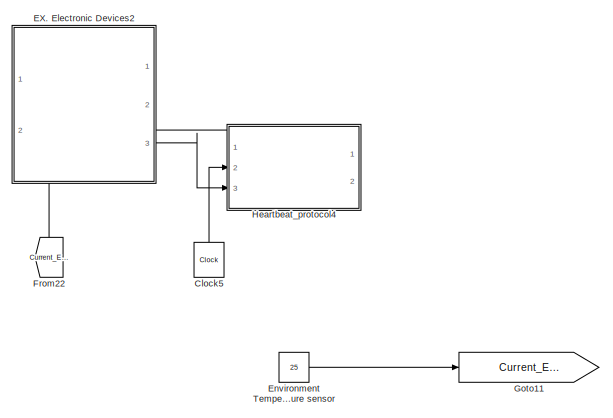
[diagram: root canvas - part 1/5, top left region]
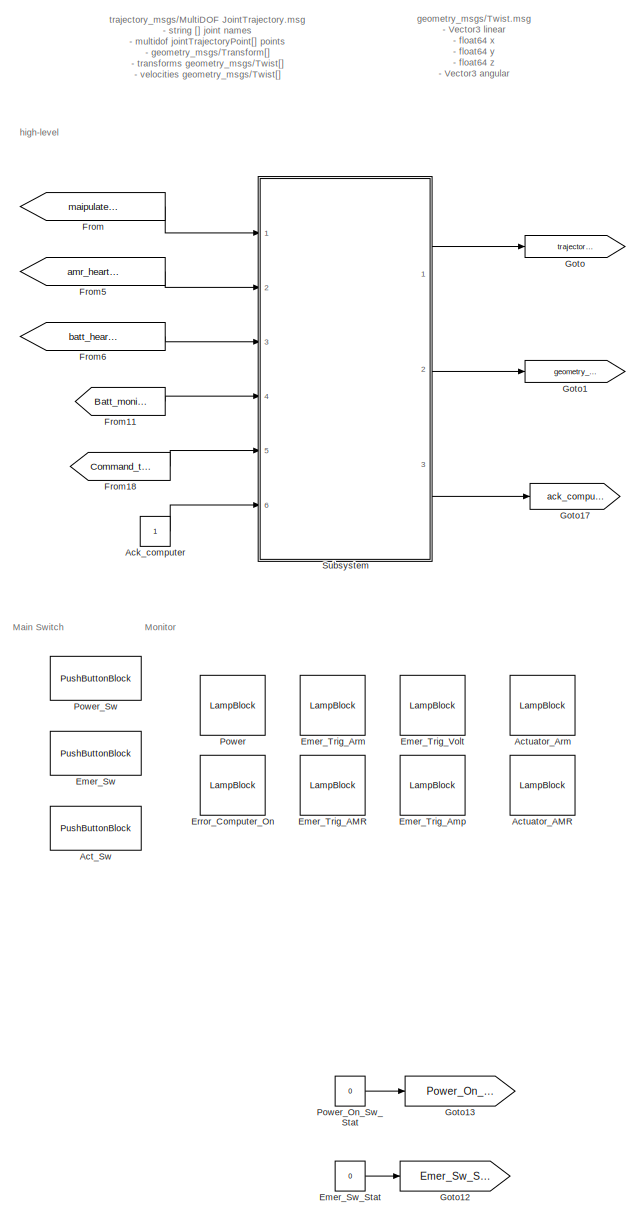
[diagram: root canvas - part 2/5, middle left region]
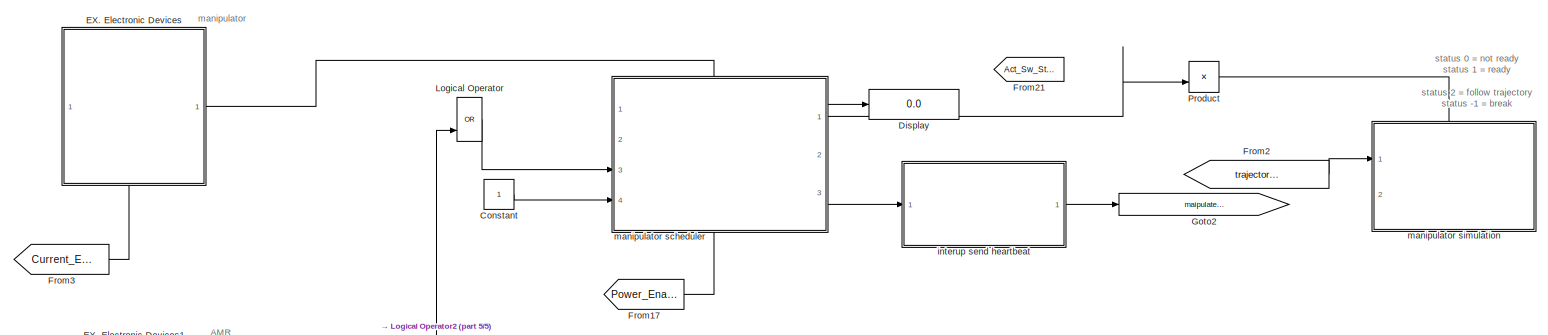
[diagram: root canvas - part 3/5, central region]
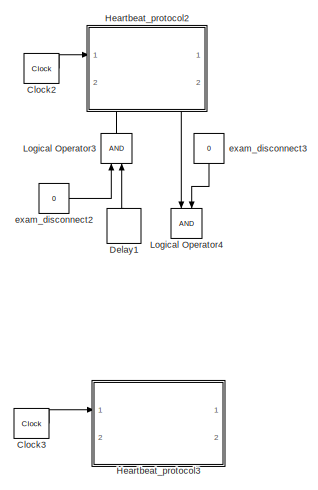
[diagram: root canvas - part 4/5, middle right region]
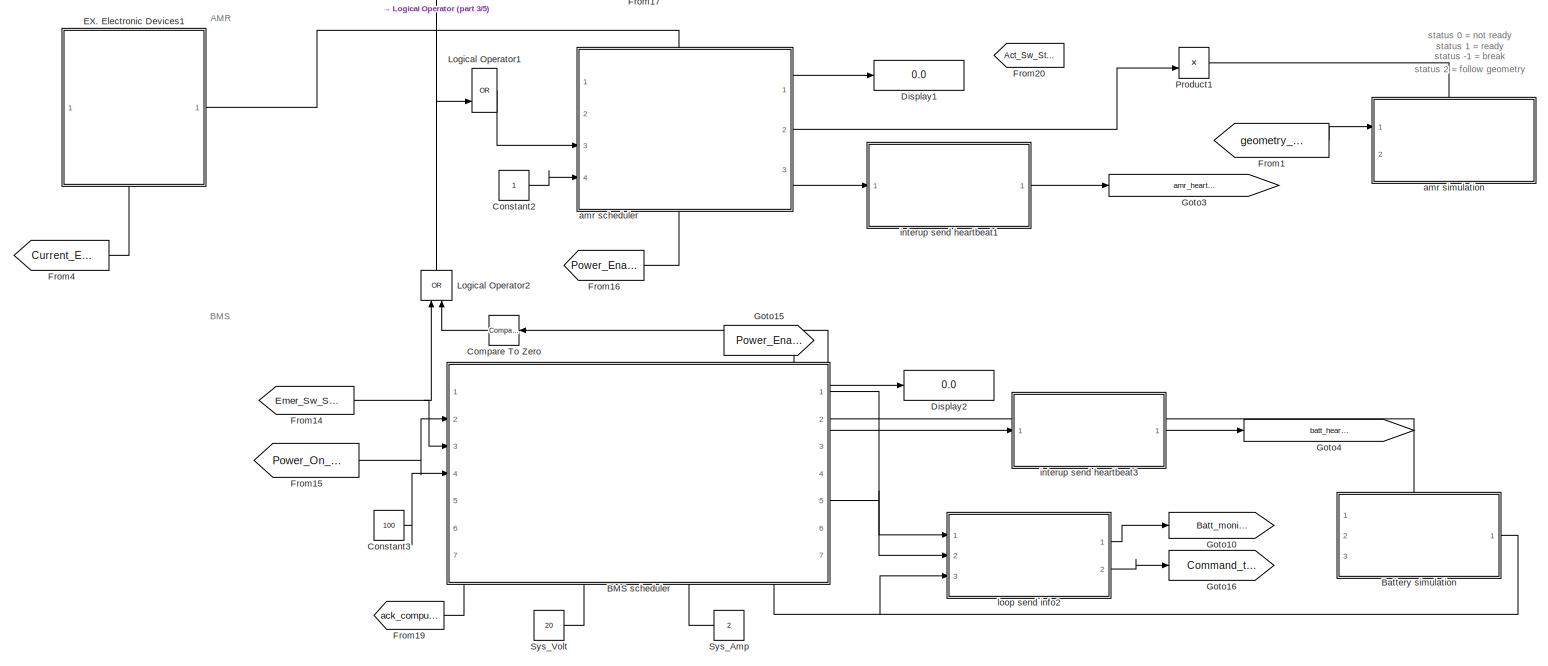
[diagram: root canvas - part 5/5, bottom center region]
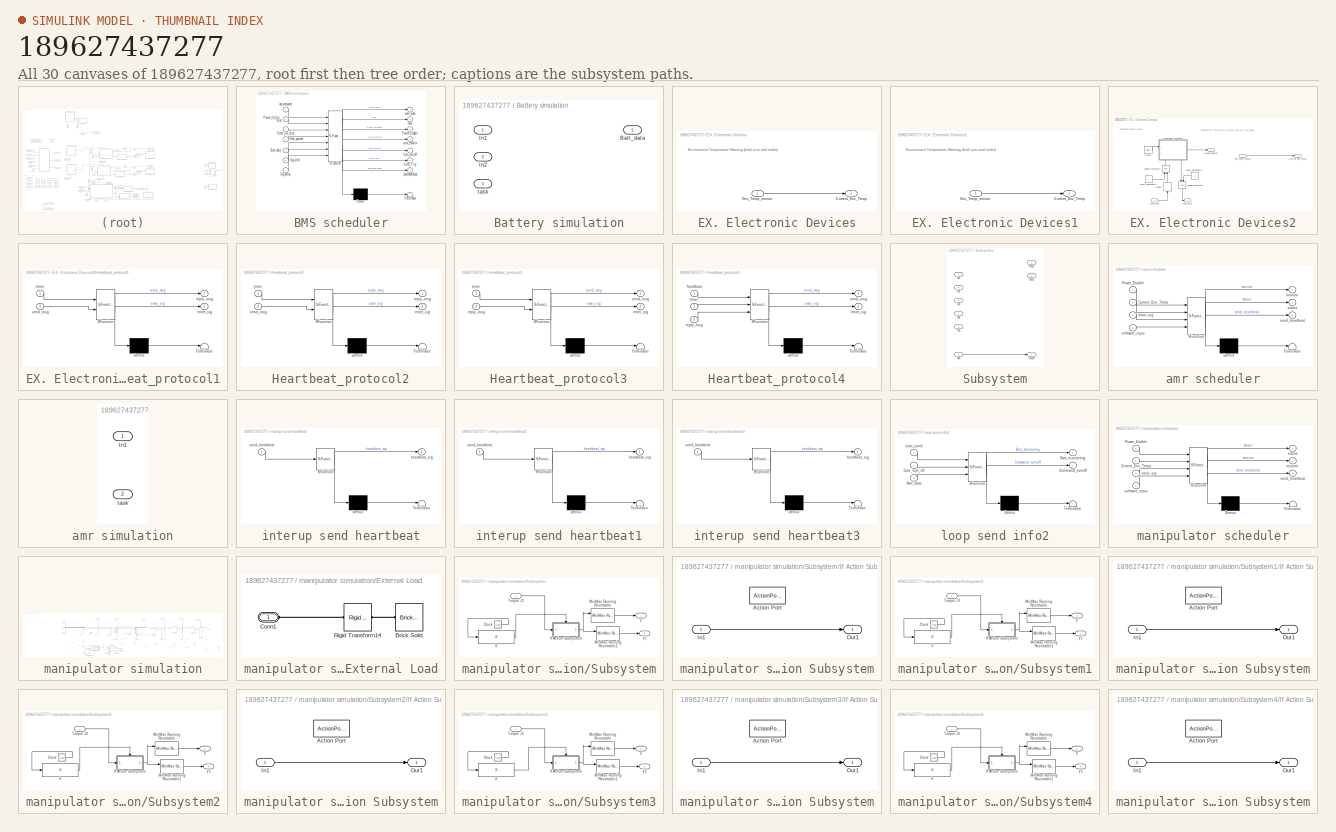
[diagram: thumbnail index - all 30 canvases of the model, root first then tree order]
MODEL slx_189627437277
KIND model
CONFIG AbsTol = auto
CONFIG EnableMultiTasking = off
CONFIG FixedStep = auto
CONFIG MaxStep = auto
CONFIG MinStep = auto
CONFIG RelTol = 1e-3
CONFIG SampleTimeConstraint = Unconstrained
CONFIG SolverName = VariableStepAuto
CONFIG StartTime = 0.0
CONFIG StopTime = inf
BLOCK [Constant] Ack_computer
BLOCK [PushButtonBlock] Act_Sw
  ButtonType = Latch
  OffValue = 0.000000
BLOCK [LampBlock] Actuator_AMR
  Icon = Engine
  LabelPosition = Hide
BLOCK [LampBlock] Actuator_Arm
  Icon = Engine
  LabelPosition = Hide
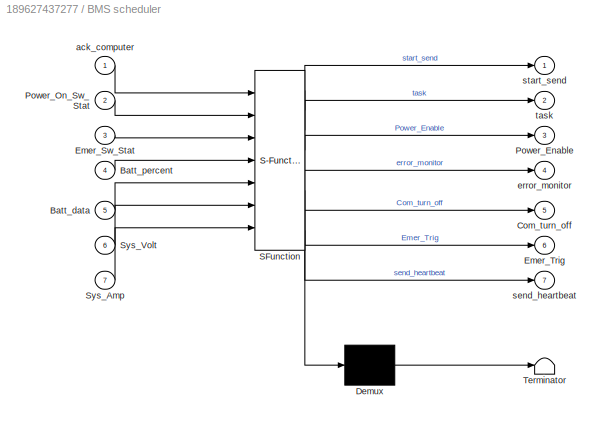
BLOCK [SubSystem] BMS scheduler
  ErrorFcn = Stateflow.Translate.translate
  PermitHierarchicalResolution = ExplicitOnly
  PortSchema = {"entries":[{"content":{"sides":[{"content":{"connectorIds":["In3","In2","In4"]},"type":"ConnectorPlacement.EquallySpacedRectSide","uuid":"e14584fa-6c70-433d-b2da-38d1197773c6"},{"content":{"connectorIds":["Out4","Out7","Out2","Out1","Out5"],"side":"RIGHT"},"type":"ConnectorPlacement.EquallySpacedRectSide","uuid":"c0129660-3601-4a2d-a8be-6a057e5db4e4"},{"content":{"connectorIds":["Out6","Out3"],"s...<+460ch>
  Ports = [7, 7]
  RequestExecContextInheritance = off
  SFBlockType = Chart
  TreatAsAtomicUnit = on
BLOCK [Demux] BMS scheduler/ Demux 
  Outputs = 1
  Ports = [1, 1]
BLOCK [S-Function] BMS scheduler/ SFunction 
  EnableBusSupport = on
  FunctionName = sf_sfun
  PortCounts = [7 8]
  Ports = [7, 8]
  SFcnIsStateOwnerBlock = off
  SFunctionDeploymentMode = off
  Tag = Stateflow S-Function 4
BLOCK [Terminator] BMS scheduler/ Terminator 
BLOCK [Inport] BMS scheduler/Batt_data
  Port = 5
BLOCK [Inport] BMS scheduler/Batt_percent
  Port = 4
BLOCK [Outport] BMS scheduler/Com_turn_off
  Port = 5
BLOCK [Inport] BMS scheduler/Emer_Sw_Stat
  Port = 3
BLOCK [Outport] BMS scheduler/Emer_Trig
  Port = 6
BLOCK [Outport] BMS scheduler/Power_Enable
  Port = 3
BLOCK [Inport] BMS scheduler/Power_On_Sw_Stat
  Port = 2
BLOCK [Inport] BMS scheduler/Sys_Amp
  Port = 7
BLOCK [Inport] BMS scheduler/Sys_Volt
  Port = 6
BLOCK [Inport] BMS scheduler/ack_computer
BLOCK [Outport] BMS scheduler/error_monitor
  Port = 4
BLOCK [Outport] BMS scheduler/send_heartbeat
  Port = 7
BLOCK [Outport] BMS scheduler/start_send
BLOCK [Outport] BMS scheduler/task
  Port = 2
BLOCK [SubSystem] Battery simulation
  PortSchema = {"entries":[{"content":{"sides":[{"content":{"connectorIds":["In1","In2"]},"type":"ConnectorPlacement.EquallySpacedRectSide","uuid":"e14584fa-6c70-433d-b2da-38d1197773c6"},{"content":{"connectorIds":["Out1"],"side":"RIGHT"},"type":"ConnectorPlacement.EquallySpacedRectSide","uuid":"c0129660-3601-4a2d-a8be-6a057e5db4e4"},{"content":{"connectorIds":["In3"],"side":"TOP"},"type":"ConnectorPlacement.Equ...<+251ch>
  Ports = [3, 1]
  RequestExecContextInheritance = off
BLOCK [Outport] Battery simulation/Batt_data
BLOCK [Inport] Battery simulation/In1
BLOCK [Inport] Battery simulation/In2
  Port = 2
BLOCK [Inport] Battery simulation/task
  Port = 3
BLOCK [Clock] Clock2
  Commented = on
  Decimation = 1
  DisplayTime = on
BLOCK [Clock] Clock3
  Commented = on
  Decimation = 1
  DisplayTime = on
BLOCK [Clock] Clock5
  Commented = on
  Decimation = 1
  DisplayTime = on
  NameLocation = right
BLOCK [Reference] Compare To Zero  REF=simulink/Logic and Bit
Operations/Compare
To Zero
  NameLocation = top
  Ports = [1, 1]
  SourceBlock = simulink/Logic and Bit\nOperations/Compare\nTo Zero
  SourceProductBaseCode = SL
  SourceType = Compare To Zero
BLOCK [Constant] Constant
BLOCK [Constant] Constant2
BLOCK [Constant] Constant3
  Value = 100
BLOCK [Delay] Delay1
  Commented = on
  DelayLength = 1
  InputPortMap = u0
  NameLocation = right
  Ports = [1, 1]
BLOCK [Display] Display
  Decimation = 1
  Ports = [1]
BLOCK [Display] Display1
  Decimation = 1
  Ports = [1]
BLOCK [Display] Display2
  Decimation = 1
  Ports = [1]
BLOCK [SubSystem] EX. Electronic Devices
  NameLocation = top
  PortSchema = {"entries":[{"content":{"sides":[{"content":{"connectorIds":[]},"type":"ConnectorPlacement.EquallySpacedRectSide","uuid":"2093f37f-91bf-4439-a287-00f2f1b8dec3"},{"content":{"connectorIds":["Out1"],"side":"RIGHT"},"type":"ConnectorPlacement.EquallySpacedRectSide","uuid":"bc710c56-ac77-428e-a7cb-e88f032cce03"},{"content":{"connectorIds":[],"side":"TOP"},"type":"ConnectorPlacement.EquallySpacedRectSi...<+384ch>
  Ports = [1, 1]
  RequestExecContextInheritance = off
BLOCK [Outport] EX. Electronic Devices/Current_Env_Temp
BLOCK [Inport] EX. Electronic Devices/Env_Temp_sensor
BLOCK [SubSystem] EX. Electronic Devices1
  NameLocation = top
  PortSchema = {"entries":[{"content":{"sides":[{"content":{"connectorIds":[]},"type":"ConnectorPlacement.EquallySpacedRectSide","uuid":"2093f37f-91bf-4439-a287-00f2f1b8dec3"},{"content":{"connectorIds":["Out1"],"side":"RIGHT"},"type":"ConnectorPlacement.EquallySpacedRectSide","uuid":"bc710c56-ac77-428e-a7cb-e88f032cce03"},{"content":{"connectorIds":[],"side":"TOP"},"type":"ConnectorPlacement.EquallySpacedRectSi...<+384ch>
  Ports = [1, 1]
  RequestExecContextInheritance = off
BLOCK [Outport] EX. Electronic Devices1/Current_Env_Temp
BLOCK [Inport] EX. Electronic Devices1/Env_Temp_sensor
BLOCK [SubSystem] EX. Electronic Devices2
  Commented = on
  NameLocation = top
  PortSchema = {"entries":[{"content":{"sides":[{"content":{"connectorIds":[]},"type":"ConnectorPlacement.EquallySpacedRectSide","uuid":"2093f37f-91bf-4439-a287-00f2f1b8dec3"},{"content":{"connectorIds":["Out1","Out2","Out3"],"side":"RIGHT"},"type":"ConnectorPlacement.EquallySpacedRectSide","uuid":"bc710c56-ac77-428e-a7cb-e88f032cce03"},{"content":{"connectorIds":[],"side":"TOP"},"type":"ConnectorPlacement.Equal...<+404ch>
  Ports = [2, 3]
  RequestExecContextInheritance = off
BLOCK [Clock] EX. Electronic Devices2/Clock4
  Decimation = 1
  DisplayTime = on
BLOCK [Outport] EX. Electronic Devices2/Current_Env_Temp
BLOCK [Delay] EX. Electronic Devices2/Delay2
  DelayLength = 1
  InputPortMap = u0
  NameLocation = right
  Ports = [1, 1]
BLOCK [Outport] EX. Electronic Devices2/Device_Fail_Stat
  Port = 2
BLOCK [Inport] EX. Electronic Devices2/Env_Temp_sensor
BLOCK [SubSystem] EX. Electronic Devices2/Heartbeat_protocol1
  ErrorFcn = Stateflow.Translate.translate
  NameLocation = top
  PermitHierarchicalResolution = ExplicitOnly
  PortSchema = {"entries":[{"content":{"sides":[{"content":{"connectorIds":["In1"]},"type":"ConnectorPlacement.EquallySpacedRectSide","uuid":"669ad136-449b-4cce-8c88-f277646368db"},{"content":{"connectorIds":["Out2"],"side":"RIGHT"},"type":"ConnectorPlacement.EquallySpacedRectSide","uuid":"85d872e5-bd76-461e-b542-94d453191651"},{"content":{"connectorIds":[],"side":"TOP"},"type":"ConnectorPlacement.EquallySpacedR...<+396ch>
  Ports = [2, 2]
  RequestExecContextInheritance = off
  SFBlockType = Chart
  TreatAsAtomicUnit = on
BLOCK [Demux] EX. Electronic Devices2/Heartbeat_protocol1/ Demux 
  Outputs = 1
  Ports = [1, 1]
BLOCK [S-Function] EX. Electronic Devices2/Heartbeat_protocol1/ SFunction 
  EnableBusSupport = on
  FunctionName = sf_sfun
  PortCounts = [2 3]
  Ports = [2, 3]
  SFcnIsStateOwnerBlock = off
  SFunctionDeploymentMode = off
  Tag = Stateflow S-Function 13
BLOCK [Terminator] EX. Electronic Devices2/Heartbeat_protocol1/ Terminator 
BLOCK [Outport] EX. Electronic Devices2/Heartbeat_protocol1/emer_sig
  Port = 2
BLOCK [Outport] EX. Electronic Devices2/Heartbeat_protocol1/reply_msg
BLOCK [Inport] EX. Electronic Devices2/Heartbeat_protocol1/send_msg
  Port = 2
BLOCK [Inport] EX. Electronic Devices2/Heartbeat_protocol1/timer
BLOCK [Logic] EX. Electronic Devices2/Logical Operator1
  AllPortsSameDT = off
  NameLocation = right
  OutDataTypeStr = boolean
  Ports = [2, 1]
BLOCK [Logic] EX. Electronic Devices2/Logical Operator2
  AllPortsSameDT = off
  NameLocation = left
  OutDataTypeStr = boolean
  Ports = [2, 1]
BLOCK [Constant] EX. Electronic Devices2/exam_disconnect1
BLOCK [Constant] EX. Electronic Devices2/exam_disconnect4
  NameLocation = right
BLOCK [Outport] EX. Electronic Devices2/reply_msg
  Port = 3
BLOCK [Inport] EX. Electronic Devices2/send_msg
  Port = 2
BLOCK [PushButtonBlock] Emer_Sw
  ButtonType = Latch
  OffValue = 0.000000
BLOCK [Constant] Emer_Sw_Stat
  Value = 0
BLOCK [LampBlock] Emer_Trig_AMR
  LabelPosition = Hide
BLOCK [LampBlock] Emer_Trig_Amp
  LabelPosition = Hide
BLOCK [LampBlock] Emer_Trig_Arm
  LabelPosition = Hide
BLOCK [LampBlock] Emer_Trig_Volt
  LabelPosition = Hide
BLOCK [Constant] Environment Temperature sensor
  Value = 25
BLOCK [LampBlock] Error_Computer_On
  LabelPosition = Hide
BLOCK [From] From
  GotoTag = maipulater_heartbeat_signal
BLOCK [From] From1
  GotoTag = geometry_msgs
BLOCK [From] From11
  GotoTag = Batt_monitoring
BLOCK [From] From14
  GotoTag = Emer_Sw_Stat
BLOCK [From] From15
  GotoTag = Power_On_Sw_Stat
BLOCK [From] From16
  GotoTag = Power_Enable
BLOCK [From] From17
  GotoTag = Power_Enable
BLOCK [From] From18
  GotoTag = Command_turnoff
BLOCK [From] From19
  GotoTag = ack_computer
BLOCK [From] From2
  GotoTag = trajectory_msgs
BLOCK [From] From20
  GotoTag = Act_Sw_Stat
BLOCK [From] From21
  GotoTag = Act_Sw_Stat
BLOCK [From] From22
  Commented = on
  GotoTag = Current_Env_Temp
  NameLocation = right
BLOCK [From] From3
  GotoTag = Current_Env_Temp
BLOCK [From] From4
  GotoTag = Current_Env_Temp
BLOCK [From] From5
  GotoTag = amr_heartbeat_signal
BLOCK [From] From6
  GotoTag = batt_heartbeat_signal
BLOCK [Goto] Goto
  GotoTag = trajectory_msgs
BLOCK [Goto] Goto1
  GotoTag = geometry_msgs
BLOCK [Goto] Goto10
  GotoTag = Batt_monitoring
BLOCK [Goto] Goto11
  GotoTag = Current_Env_Temp
BLOCK [Goto] Goto12
  GotoTag = Emer_Sw_Stat
BLOCK [Goto] Goto13
  GotoTag = Power_On_Sw_Stat
BLOCK [Goto] Goto15
  GotoTag = Power_Enable
BLOCK [Goto] Goto16
  GotoTag = Command_turnoff
BLOCK [Goto] Goto17
  GotoTag = ack_computer
BLOCK [Goto] Goto2
  GotoTag = maipulater_heartbeat_signal
BLOCK [Goto] Goto3
  GotoTag = amr_heartbeat_signal
BLOCK [Goto] Goto4
  GotoTag = batt_heartbeat_signal
BLOCK [SubSystem] Heartbeat_protocol2
  Commented = on
  ErrorFcn = Stateflow.Translate.translate
  NameLocation = top
  PermitHierarchicalResolution = ExplicitOnly
  PortSchema = {"entries":[{"content":{"sides":[{"content":{"connectorIds":["In1"]},"type":"ConnectorPlacement.EquallySpacedRectSide","uuid":"669ad136-449b-4cce-8c88-f277646368db"},{"content":{"connectorIds":["Out2"],"side":"RIGHT"},"type":"ConnectorPlacement.EquallySpacedRectSide","uuid":"85d872e5-bd76-461e-b542-94d453191651"},{"content":{"connectorIds":[],"side":"TOP"},"type":"ConnectorPlacement.EquallySpacedR...<+396ch>
  Ports = [2, 2]
  RequestExecContextInheritance = off
  SFBlockType = Chart
  TreatAsAtomicUnit = on
BLOCK [Demux] Heartbeat_protocol2/ Demux 
  Outputs = 1
  Ports = [1, 1]
BLOCK [S-Function] Heartbeat_protocol2/ SFunction 
  EnableBusSupport = on
  FunctionName = sf_sfun
  PortCounts = [2 3]
  Ports = [2, 3]
  SFcnIsStateOwnerBlock = off
  SFunctionDeploymentMode = off
  Tag = Stateflow S-Function 9
BLOCK [Terminator] Heartbeat_protocol2/ Terminator 
BLOCK [Outport] Heartbeat_protocol2/emer_sig
  Port = 2
BLOCK [Outport] Heartbeat_protocol2/reply_msg
BLOCK [Inport] Heartbeat_protocol2/send_msg
  Port = 2
BLOCK [Inport] Heartbeat_protocol2/timer
BLOCK [SubSystem] Heartbeat_protocol3
  Commented = on
  ErrorFcn = Stateflow.Translate.translate
  PermitHierarchicalResolution = ExplicitOnly
  PortSchema = {"entries":[{"content":{"sides":[{"content":{"connectorIds":["In1"]},"type":"ConnectorPlacement.EquallySpacedRectSide","uuid":"55ab65ce-874e-4ed3-8904-faffec9acc87"},{"content":{"connectorIds":["Out2"],"side":"RIGHT"},"type":"ConnectorPlacement.EquallySpacedRectSide","uuid":"0d2cd230-18ea-4b79-8380-304b366a5a71"},{"content":{"connectorIds":["Out1","In2"],"side":"TOP"},"type":"ConnectorPlacement.Eq...<+252ch>
  Ports = [2, 2]
  RequestExecContextInheritance = off
  SFBlockType = Chart
  TreatAsAtomicUnit = on
BLOCK [Demux] Heartbeat_protocol3/ Demux 
  Outputs = 1
  Ports = [1, 1]
BLOCK [S-Function] Heartbeat_protocol3/ SFunction 
  EnableBusSupport = on
  FunctionName = sf_sfun
  PortCounts = [2 3]
  Ports = [2, 3]
  SFcnIsStateOwnerBlock = off
  SFunctionDeploymentMode = off
  Tag = Stateflow S-Function 10
BLOCK [Terminator] Heartbeat_protocol3/ Terminator 
BLOCK [Outport] Heartbeat_protocol3/emer_sig
  Port = 2
BLOCK [Inport] Heartbeat_protocol3/reply_msg
  Port = 2
BLOCK [Outport] Heartbeat_protocol3/send_msg
BLOCK [Inport] Heartbeat_protocol3/timer
BLOCK [SubSystem] Heartbeat_protocol4
  Commented = on
  ErrorFcn = Stateflow.Translate.translate
  PermitHierarchicalResolution = ExplicitOnly
  PortSchema = {"entries":[{"content":{"sides":[{"content":{"connectorIds":["In3","Out1","In2"]},"type":"ConnectorPlacement.EquallySpacedRectSide","uuid":"55ab65ce-874e-4ed3-8904-faffec9acc87"},{"content":{"connectorIds":["Out2"],"side":"RIGHT"},"type":"ConnectorPlacement.EquallySpacedRectSide","uuid":"0d2cd230-18ea-4b79-8380-304b366a5a71"},{"content":{"connectorIds":[],"side":"TOP"},"type":"ConnectorPlacement.E...<+402ch>
  Ports = [3, 2]
  RequestExecContextInheritance = off
  SFBlockType = Chart
  TreatAsAtomicUnit = on
BLOCK [Demux] Heartbeat_protocol4/ Demux 
  Outputs = 1
  Ports = [1, 1]
BLOCK [S-Function] Heartbeat_protocol4/ SFunction 
  EnableBusSupport = on
  FunctionName = sf_sfun
  PortCounts = [3 3]
  Ports = [3, 3]
  SFcnIsStateOwnerBlock = off
  SFunctionDeploymentMode = off
  Tag = Stateflow S-Function 14
BLOCK [Terminator] Heartbeat_protocol4/ Terminator 
BLOCK [Outport] Heartbeat_protocol4/emer_sig
  Port = 2
BLOCK [Inport] Heartbeat_protocol4/heartbeat
BLOCK [Inport] Heartbeat_protocol4/reply_msg
  Port = 3
BLOCK [Outport] Heartbeat_protocol4/send_msg
BLOCK [Inport] Heartbeat_protocol4/timer
  Port = 2
BLOCK [Logic] Logical Operator
  AllPortsSameDT = off
  IconShape = distinctive
  Inputs = 3
  Operator = OR
  OutDataTypeStr = boolean
  Ports = [3, 1]
BLOCK [Logic] Logical Operator1
  AllPortsSameDT = off
  IconShape = distinctive
  Inputs = 3
  Operator = OR
  OutDataTypeStr = boolean
  Ports = [3, 1]
BLOCK [Logic] Logical Operator2
  AllPortsSameDT = off
  NameLocation = right
  Operator = OR
  OutDataTypeStr = boolean
  Ports = [2, 1]
BLOCK [Logic] Logical Operator3
  AllPortsSameDT = off
  Commented = on
  NameLocation = right
  OutDataTypeStr = boolean
  Ports = [2, 1]
BLOCK [Logic] Logical Operator4
  AllPortsSameDT = off
  Commented = on
  NameLocation = left
  OutDataTypeStr = boolean
  Ports = [2, 1]
BLOCK [LampBlock] Power
  LabelPosition = Hide
BLOCK [Constant] Power_On_Sw_Stat
  Value = 0
BLOCK [PushButtonBlock] Power_Sw
  OffValue = 0.000000
BLOCK [Product] Product
  Ports = [2, 1]
BLOCK [Product] Product1
  Ports = [2, 1]
BLOCK [SubSystem] Subsystem
  Ports = [6, 3]
  RequestExecContextInheritance = off
BLOCK [Inport] Subsystem/In1
BLOCK [Inport] Subsystem/In2
  Port = 2
BLOCK [Inport] Subsystem/In3
  Port = 3
BLOCK [Inport] Subsystem/In4
  Port = 4
BLOCK [Inport] Subsystem/In5
  Port = 5
BLOCK [Inport] Subsystem/In6
  Port = 6
BLOCK [Outport] Subsystem/Out1
  Port = 2
BLOCK [Outport] Subsystem/Out2
BLOCK [Outport] Subsystem/Out8
  Port = 3
BLOCK [Constant] Sys_Amp
  Value = 2
BLOCK [Constant] Sys_Volt
  Value = 20
BLOCK [SubSystem] amr scheduler
  ErrorFcn = Stateflow.Translate.translate
  PermitHierarchicalResolution = ExplicitOnly
  PortSchema = {"entries":[{"content":{"sides":[{"content":{"connectorIds":["In3","In4"]},"type":"ConnectorPlacement.EquallySpacedRectSide","uuid":"e14584fa-6c70-433d-b2da-38d1197773c6"},{"content":{"connectorIds":["Out1","Out2","Out3"],"side":"RIGHT"},"type":"ConnectorPlacement.EquallySpacedRectSide","uuid":"c0129660-3601-4a2d-a8be-6a057e5db4e4"},{"content":{"connectorIds":["In2"],"side":"TOP"},"type":"Connecto...<+414ch>
  Ports = [4, 3]
  RequestExecContextInheritance = off
  SFBlockType = Chart
  TreatAsAtomicUnit = on
BLOCK [Demux] amr scheduler/ Demux 
  Outputs = 1
  Ports = [1, 1]
BLOCK [S-Function] amr scheduler/ SFunction 
  EnableBusSupport = on
  FunctionName = sf_sfun
  PortCounts = [4 4]
  Ports = [4, 4]
  SFcnIsStateOwnerBlock = off
  SFunctionDeploymentMode = off
  Tag = Stateflow S-Function 5
BLOCK [Terminator] amr scheduler/ Terminator 
BLOCK [Inport] amr scheduler/Current_Env_Temp
  Port = 2
BLOCK [Inport] amr scheduler/Power_Enable
BLOCK [Inport] amr scheduler/emer_sig
  Port = 3
BLOCK [Outport] amr scheduler/monitor
BLOCK [Outport] amr scheduler/send_heartbeat
  Port = 3
BLOCK [Inport] amr scheduler/software_input
  Port = 4
BLOCK [Outport] amr scheduler/status
  Port = 2
BLOCK [SubSystem] amr simulation
  PortSchema = {"entries":[{"content":{"sides":[{"content":{"connectorIds":["In1"]},"type":"ConnectorPlacement.EquallySpacedRectSide","uuid":"e14584fa-6c70-433d-b2da-38d1197773c6"},{"content":{"connectorIds":[],"side":"RIGHT"},"type":"ConnectorPlacement.EquallySpacedRectSide","uuid":"c0129660-3601-4a2d-a8be-6a057e5db4e4"},{"content":{"connectorIds":["In2"],"side":"TOP"},"type":"ConnectorPlacement.EquallySpacedRe...<+239ch>
  Ports = [2]
  RequestExecContextInheritance = off
BLOCK [Inport] amr simulation/In1
BLOCK [Inport] amr simulation/task
  Port = 2
BLOCK [Constant] exam_disconnect2
  Commented = on
  Value = 0
BLOCK [Constant] exam_disconnect3
  Commented = on
  NameLocation = top
  Value = 0
BLOCK [SubSystem] interup send heartbeat
  ErrorFcn = Stateflow.Translate.translate
  PermitHierarchicalResolution = ExplicitOnly
  Ports = [1, 1]
  RequestExecContextInheritance = off
  SFBlockType = Chart
  TreatAsAtomicUnit = on
BLOCK [Demux] interup send heartbeat/ Demux 
  Outputs = 1
  Ports = [1, 1]
BLOCK [S-Function] interup send heartbeat/ SFunction 
  EnableBusSupport = on
  FunctionName = sf_sfun
  PortCounts = [1 2]
  Ports = [1, 2]
  SFcnIsStateOwnerBlock = off
  SFunctionDeploymentMode = off
  Tag = Stateflow S-Function 2
BLOCK [Terminator] interup send heartbeat/ Terminator 
BLOCK [Outport] interup send heartbeat/heartbeat_sig
BLOCK [Inport] interup send heartbeat/send_heartbeat
BLOCK [SubSystem] interup send heartbeat1
  ErrorFcn = Stateflow.Translate.translate
  PermitHierarchicalResolution = ExplicitOnly
  Ports = [1, 1]
  RequestExecContextInheritance = off
  SFBlockType = Chart
  TreatAsAtomicUnit = on
BLOCK [Demux] interup send heartbeat1/ Demux 
  Outputs = 1
  Ports = [1, 1]
BLOCK [S-Function] interup send heartbeat1/ SFunction 
  EnableBusSupport = on
  FunctionName = sf_sfun
  PortCounts = [1 2]
  Ports = [1, 2]
  SFcnIsStateOwnerBlock = off
  SFunctionDeploymentMode = off
  Tag = Stateflow S-Function 1
BLOCK [Terminator] interup send heartbeat1/ Terminator 
BLOCK [Outport] interup send heartbeat1/heartbeat_sig
BLOCK [Inport] interup send heartbeat1/send_heartbeat
BLOCK [SubSystem] interup send heartbeat3
  ErrorFcn = Stateflow.Translate.translate
  PermitHierarchicalResolution = ExplicitOnly
  Ports = [1, 1]
  RequestExecContextInheritance = off
  SFBlockType = Chart
  TreatAsAtomicUnit = on
BLOCK [Demux] interup send heartbeat3/ Demux 
  Outputs = 1
  Ports = [1, 1]
BLOCK [S-Function] interup send heartbeat3/ SFunction 
  EnableBusSupport = on
  FunctionName = sf_sfun
  PortCounts = [1 2]
  Ports = [1, 2]
  SFcnIsStateOwnerBlock = off
  SFunctionDeploymentMode = off
  Tag = Stateflow S-Function 7
BLOCK [Terminator] interup send heartbeat3/ Terminator 
BLOCK [Outport] interup send heartbeat3/heartbeat_sig
BLOCK [Inport] interup send heartbeat3/send_heartbeat
BLOCK [SubSystem] loop send info2
  ErrorFcn = Stateflow.Translate.translate
  PermitHierarchicalResolution = ExplicitOnly
  Ports = [3, 2]
  RequestExecContextInheritance = off
  SFBlockType = Chart
  TreatAsAtomicUnit = on
BLOCK [Demux] loop send info2/ Demux 
  Outputs = 1
  Ports = [1, 1]
BLOCK [S-Function] loop send info2/ SFunction 
  EnableBusSupport = on
  FunctionName = sf_sfun
  PortCounts = [3 3]
  Ports = [3, 3]
  SFcnIsStateOwnerBlock = off
  SFunctionDeploymentMode = off
  Tag = Stateflow S-Function 6
BLOCK [Terminator] loop send info2/ Terminator 
BLOCK [Inport] loop send info2/Batt_data
  Port = 3
BLOCK [Outport] loop send info2/Batt_monitoring
BLOCK [Inport] loop send info2/Com_turn_off
  Port = 2
BLOCK [Outport] loop send info2/Command_turnoff
  Port = 2
BLOCK [Inport] loop send info2/start_send
BLOCK [SubSystem] manipulator scheduler
  ErrorFcn = Stateflow.Translate.translate
  PermitHierarchicalResolution = ExplicitOnly
  PortSchema = {"entries":[{"content":{"sides":[{"content":{"connectorIds":["In3","In4"]},"type":"ConnectorPlacement.EquallySpacedRectSide","uuid":"e14584fa-6c70-433d-b2da-38d1197773c6"},{"content":{"connectorIds":["Out2","Out1","Out3"],"side":"RIGHT"},"type":"ConnectorPlacement.EquallySpacedRectSide","uuid":"c0129660-3601-4a2d-a8be-6a057e5db4e4"},{"content":{"connectorIds":["In2"],"side":"TOP"},"type":"Connecto...<+414ch>
  Ports = [4, 3]
  RequestExecContextInheritance = off
  SFBlockType = Chart
  TreatAsAtomicUnit = on
BLOCK [Demux] manipulator scheduler/ Demux 
  Outputs = 1
  Ports = [1, 1]
BLOCK [S-Function] manipulator scheduler/ SFunction 
  EnableBusSupport = on
  FunctionName = sf_sfun
  PortCounts = [4 4]
  Ports = [4, 4]
  SFcnIsStateOwnerBlock = off
  SFunctionDeploymentMode = off
  Tag = Stateflow S-Function 3
BLOCK [Terminator] manipulator scheduler/ Terminator 
BLOCK [Inport] manipulator scheduler/Current_Env_Temp
  Port = 2
BLOCK [Inport] manipulator scheduler/Power_Enable
BLOCK [Inport] manipulator scheduler/emer_sig
  Port = 3
BLOCK [Outport] manipulator scheduler/monitor
  Port = 2
BLOCK [Outport] manipulator scheduler/send_heartbeat
  Port = 3
BLOCK [Inport] manipulator scheduler/software_input
  Port = 4
BLOCK [Outport] manipulator scheduler/status
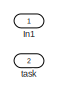
[diagram: manipulator simulation - part 1/4, top left region]
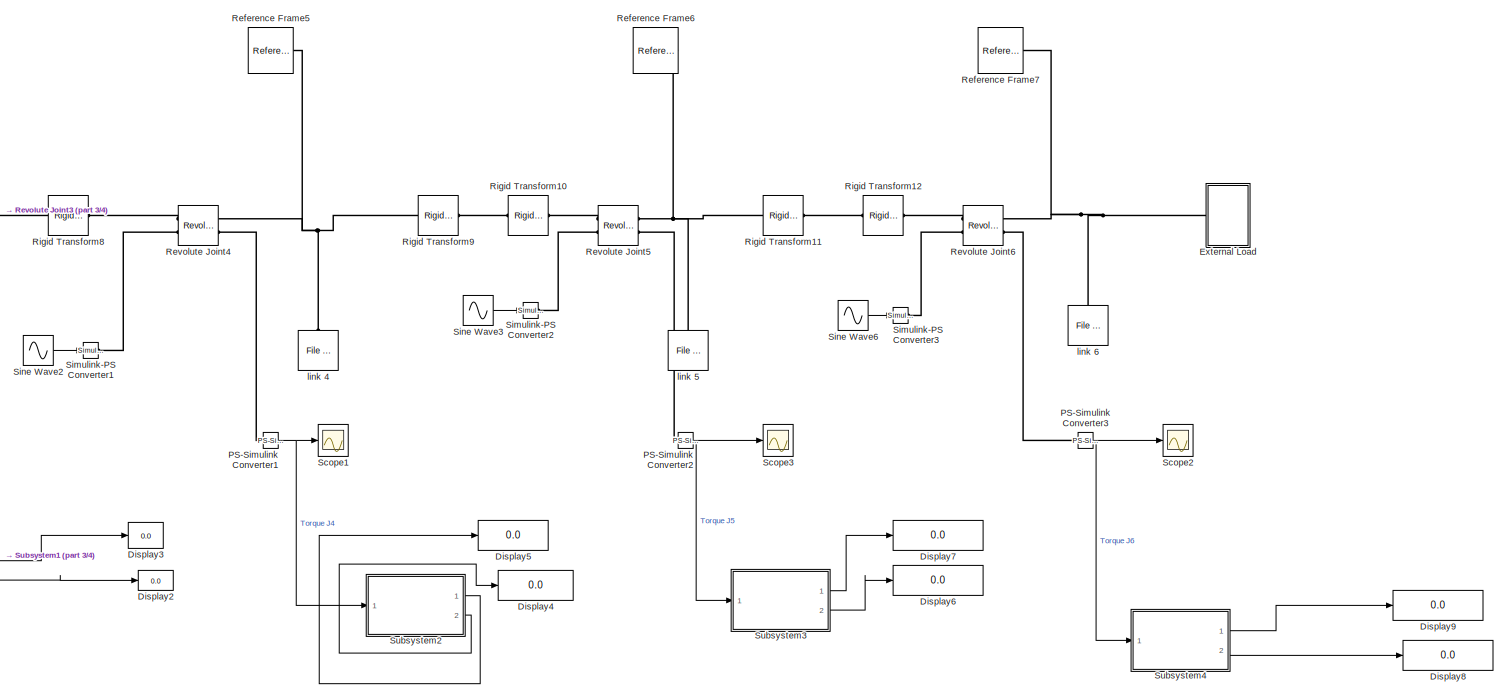
[diagram: manipulator simulation - part 2/4, right side, full height]
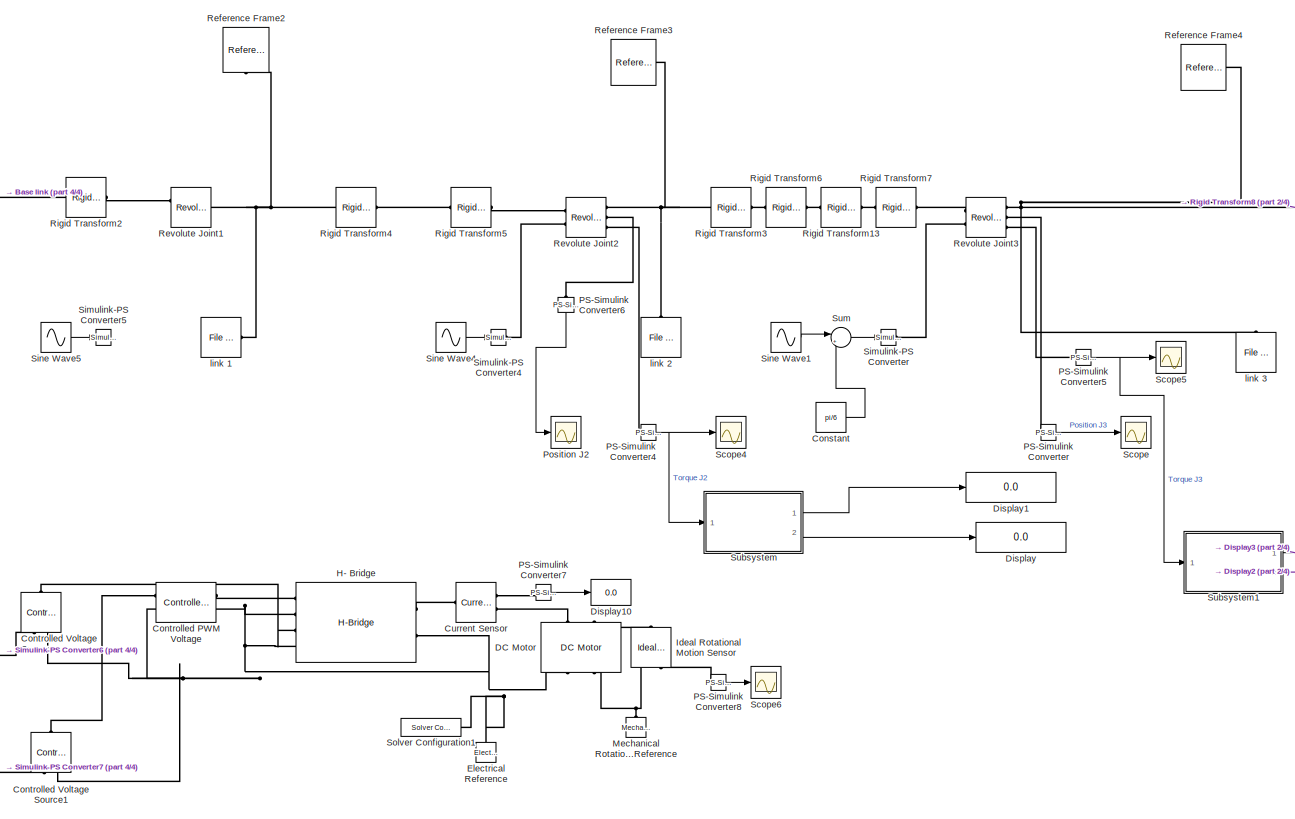
[diagram: manipulator simulation - part 3/4, center side, full height]
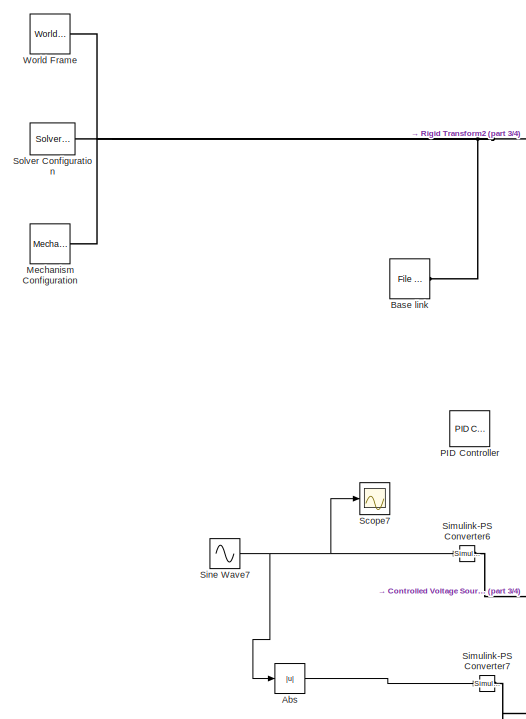
[diagram: manipulator simulation - part 4/4, left side, full height]
BLOCK [SubSystem] manipulator simulation
  PortSchema = {"entries":[{"content":{"sides":[{"content":{"connectorIds":["In1"]},"type":"ConnectorPlacement.EquallySpacedRectSide","uuid":"80f1c3ab-f726-46f3-9980-68f35c05e058"},{"content":{"connectorIds":[],"side":"RIGHT"},"type":"ConnectorPlacement.EquallySpacedRectSide","uuid":"8613bb6a-65ca-45e7-9d44-92dca48eb7bb"},{"content":{"connectorIds":["In2"],"side":"TOP"},"type":"ConnectorPlacement.EquallySpacedRe...<+239ch>
  Ports = [2]
  RequestExecContextInheritance = off
BLOCK [Reference] manipulator simulation/ Controlled PWM Voltage  REF=ee_lib/Integrated Circuits/Controlled PWM
Voltage
  Commented = on
  Ports = [0, 0, 0, 0, 0, 2, 2]
  SourceBlock = ee_lib/Integrated Circuits/Controlled PWM\nVoltage
  SourceProductBaseCode = PS
  SourceType = Controlled PWM\nVoltage
BLOCK [Abs] manipulator simulation/Abs
  Commented = on
  SaturateOnIntegerOverflow = off
BLOCK [Reference] manipulator simulation/Base link  REF=sm_lib/Body Elements/File Solid
  Commented = on
  Ports = [0, 0, 0, 0, 0, 0, 1]
  SourceBlock = sm_lib/Body Elements/File Solid
  SourceProductBaseCode = MS
  SourceType = File Solid
BLOCK [Constant] manipulator simulation/Constant
  Commented = on
  Value = pi/6
BLOCK [Reference] manipulator simulation/Controlled Voltage Source  REF=fl_lib/Electrical/Electrical Sources/Controlled Voltage
Source
  Commented = on
  NameLocation = right
  Ports = [0, 0, 0, 0, 0, 1, 2]
  SourceBlock = fl_lib/Electrical/Electrical Sources/Controlled Voltage\nSource
  SourceProductBaseCode = SS
  SourceType = Controlled Voltage\nSource
BLOCK [Reference] manipulator simulation/Controlled Voltage Source1  REF=fl_lib/Electrical/Electrical Sources/Controlled Voltage
Source
  Commented = on
  NameLocation = right
  Ports = [0, 0, 0, 0, 0, 1, 2]
  SourceBlock = fl_lib/Electrical/Electrical Sources/Controlled Voltage\nSource
  SourceProductBaseCode = SS
  SourceType = Controlled Voltage\nSource
BLOCK [Reference] manipulator simulation/Current Sensor  REF=fl_lib/Electrical/Electrical Sensors/Current Sensor
  Commented = on
  Ports = [0, 0, 0, 0, 0, 1, 2]
  SourceBlock = fl_lib/Electrical/Electrical Sensors/Current Sensor
  SourceProductBaseCode = SS
  SourceType = Current Sensor
BLOCK [Reference] manipulator simulation/DC Motor  REF=ee_lib/Electromechanical/Brushed Motors/DC Motor
  Commented = on
  NameLocation = right
  Ports = [0, 0, 0, 0, 0, 2, 2]
  SourceBlock = ee_lib/Electromechanical/Brushed Motors/DC Motor
  SourceProductBaseCode = PS
  SourceType = DC Motor
BLOCK [Display] manipulator simulation/Display
  Commented = on
  Decimation = 1
  Ports = [1]
BLOCK [Display] manipulator simulation/Display1
  Commented = on
  Decimation = 1
  Ports = [1]
BLOCK [Display] manipulator simulation/Display10
  Commented = on
  Decimation = 1
  Ports = [1]
BLOCK [Display] manipulator simulation/Display2
  Commented = on
  Decimation = 1
  Ports = [1]
BLOCK [Display] manipulator simulation/Display3
  Commented = on
  Decimation = 1
  Ports = [1]
BLOCK [Display] manipulator simulation/Display4
  Commented = on
  Decimation = 1
  Ports = [1]
BLOCK [Display] manipulator simulation/Display5
  Commented = on
  Decimation = 1
  Ports = [1]
BLOCK [Display] manipulator simulation/Display6
  Commented = on
  Decimation = 1
  Ports = [1]
BLOCK [Display] manipulator simulation/Display7
  Commented = on
  Decimation = 1
  Ports = [1]
BLOCK [Display] manipulator simulation/Display8
  Commented = on
  Decimation = 1
  Ports = [1]
BLOCK [Display] manipulator simulation/Display9
  Commented = on
  Decimation = 1
  Ports = [1]
BLOCK [Reference] manipulator simulation/Electrical Reference  REF=fl_lib/Electrical/Electrical Elements/Electrical Reference
  Commented = on
  NameLocation = right
  Ports = [0, 0, 0, 0, 0, 1]
  SourceBlock = fl_lib/Electrical/Electrical Elements/Electrical Reference
  SourceProductBaseCode = SS
  SourceType = Electrical Reference
BLOCK [SubSystem] manipulator simulation/External Load
  Commented = on
  Ports = [0, 0, 0, 0, 0, 1]
  RequestExecContextInheritance = off
BLOCK [Reference] manipulator simulation/External Load/Brick Solid  REF=sm_lib/Body Elements/Brick Solid
  NameLocation = top
  Ports = [0, 0, 0, 0, 0, 0, 1]
  SourceBlock = sm_lib/Body Elements/Brick Solid
  SourceProductBaseCode = MS
  SourceType = Brick Solid
BLOCK [PMIOPort] manipulator simulation/External Load/Conn1
  Side = Left
BLOCK [Reference] manipulator simulation/External Load/Rigid Transform14  REF=sm_lib/Frames and
Transforms/Rigid
Transform
  Ports = [0, 0, 0, 0, 0, 1, 1]
  SourceBlock = sm_lib/Frames and\nTransforms/Rigid\nTransform
  SourceProductBaseCode = MS
  SourceType = Rigid\nTransform
BLOCK [Reference] manipulator simulation/H- Bridge  REF=ee_lib/Semiconductors &
Converters/Converters/H-Bridge
  Commented = on
  Ports = [0, 0, 0, 0, 0, 4, 2]
  SourceBlock = ee_lib/Semiconductors &\nConverters/Converters/H-Bridge
  SourceProductBaseCode = PS
  SourceType = H-Bridge
BLOCK [Reference] manipulator simulation/Ideal Rotational Motion Sensor  REF=fl_lib/Mechanical/Mechanical Sensors/Ideal Rotational
Motion Sensor
  Commented = on
  NameLocation = right
  Ports = [0, 0, 0, 0, 0, 1, 3]
  SourceBlock = fl_lib/Mechanical/Mechanical Sensors/Ideal Rotational\nMotion Sensor
  SourceProductBaseCode = SS
  SourceType = Ideal Rotational\nMotion Sensor
BLOCK [Inport] manipulator simulation/In1
BLOCK [Reference] manipulator simulation/Mechanical Rotational Reference  REF=fl_lib/Mechanical/Rotational Elements/Mechanical
Rotational Reference
  Commented = on
  NameLocation = right
  Ports = [0, 0, 0, 0, 0, 1]
  SourceBlock = fl_lib/Mechanical/Rotational Elements/Mechanical\nRotational Reference
  SourceProductBaseCode = SS
  SourceType = Mechanical\nRotational Reference
BLOCK [Reference] manipulator simulation/Mechanism Configuration  REF=sm_lib/Utilities/Mechanism
Configuration
  Commented = on
  Ports = [0, 0, 0, 0, 0, 0, 1]
  SourceBlock = sm_lib/Utilities/Mechanism\nConfiguration
  SourceProductBaseCode = MS
  SourceType = Mechanism\nConfiguration
BLOCK [Reference] manipulator simulation/PID Controller  REF=slpidlib/PID Controller
  Commented = on
  Ports = [1, 1]
  SourceBlock = slpidlib/PID Controller
  SourceProductBaseCode = SL
  SourceType = PID 1dof
BLOCK [Reference] manipulator simulation/PS-Simulink Converter  REF=nesl_utility/PS-Simulink
Converter
  Commented = on
  Ports = [0, 1, 0, 0, 0, 1]
  SourceBlock = nesl_utility/PS-Simulink\nConverter
  SourceProductBaseCode = PW,SS
  SourceType = PS-Simulink\nConverter
BLOCK [Reference] manipulator simulation/PS-Simulink Converter1  REF=nesl_utility/PS-Simulink
Converter
  Commented = on
  Ports = [0, 1, 0, 0, 0, 1]
  SourceBlock = nesl_utility/PS-Simulink\nConverter
  SourceProductBaseCode = PW,SS
  SourceType = PS-Simulink\nConverter
BLOCK [Reference] manipulator simulation/PS-Simulink Converter2  REF=nesl_utility/PS-Simulink
Converter
  Commented = on
  Ports = [0, 1, 0, 0, 0, 1]
  SourceBlock = nesl_utility/PS-Simulink\nConverter
  SourceProductBaseCode = PW,SS
  SourceType = PS-Simulink\nConverter
BLOCK [Reference] manipulator simulation/PS-Simulink Converter3  REF=nesl_utility/PS-Simulink
Converter
  Commented = on
  Ports = [0, 1, 0, 0, 0, 1]
  SourceBlock = nesl_utility/PS-Simulink\nConverter
  SourceProductBaseCode = PW,SS
  SourceType = PS-Simulink\nConverter
BLOCK [Reference] manipulator simulation/PS-Simulink Converter4  REF=nesl_utility/PS-Simulink
Converter
  Commented = on
  Ports = [0, 1, 0, 0, 0, 1]
  SourceBlock = nesl_utility/PS-Simulink\nConverter
  SourceProductBaseCode = PW,SS
  SourceType = PS-Simulink\nConverter
BLOCK [Reference] manipulator simulation/PS-Simulink Converter5  REF=nesl_utility/PS-Simulink
Converter
  Commented = on
  Ports = [0, 1, 0, 0, 0, 1]
  SourceBlock = nesl_utility/PS-Simulink\nConverter
  SourceProductBaseCode = PW,SS
  SourceType = PS-Simulink\nConverter
BLOCK [Reference] manipulator simulation/PS-Simulink Converter6  REF=nesl_utility/PS-Simulink
Converter
  Commented = on
  NameLocation = left
  Ports = [0, 1, 0, 0, 0, 1]
  SourceBlock = nesl_utility/PS-Simulink\nConverter
  SourceProductBaseCode = PW,SS
  SourceType = PS-Simulink\nConverter
BLOCK [Reference] manipulator simulation/PS-Simulink Converter7  REF=nesl_utility/PS-Simulink
Converter
  Commented = on
  Ports = [0, 1, 0, 0, 0, 1]
  SourceBlock = nesl_utility/PS-Simulink\nConverter
  SourceProductBaseCode = PW,SS
  SourceType = PS-Simulink\nConverter
BLOCK [Reference] manipulator simulation/PS-Simulink Converter8  REF=nesl_utility/PS-Simulink
Converter
  Commented = on
  Ports = [0, 1, 0, 0, 0, 1]
  SourceBlock = nesl_utility/PS-Simulink\nConverter
  SourceProductBaseCode = PW,SS
  SourceType = PS-Simulink\nConverter
BLOCK [Scope] manipulator simulation/Position J2
  Commented = on
  Floating = off
  NumInputPorts = 1
  Ports = [1]
  ScopeSpecificationString = Simulink.scopes.TimeScopeBlockCfg('CurrentConfiguration', extmgr.ConfigurationSet(extmgr.Configuration('Core','General UI',true),extmgr.Configuration('Core','Source UI',true),extmgr.Configuration('Sources','WiredSimulink',true,'DataLoggingVariableName','ScopeData1'),extmgr.Configuration('Visuals','Time Domain',true,'SerializedDisplays',{struct('MinYLimReal','-1.96349','MaxYLimReal','1.96349','YLab...<+1381ch>
BLOCK [Reference] manipulator simulation/Reference Frame2  REF=sm_lib/Frames and
Transforms/Reference
Frame
  Commented = on
  NameLocation = left
  Ports = [0, 0, 0, 0, 0, 0, 1]
  SourceBlock = sm_lib/Frames and\nTransforms/Reference\nFrame
  SourceProductBaseCode = MS
  SourceType = Reference\nFrame
BLOCK [Reference] manipulator simulation/Reference Frame3  REF=sm_lib/Frames and
Transforms/Reference
Frame
  Commented = on
  Ports = [0, 0, 0, 0, 0, 0, 1]
  SourceBlock = sm_lib/Frames and\nTransforms/Reference\nFrame
  SourceProductBaseCode = MS
  SourceType = Reference\nFrame
BLOCK [Reference] manipulator simulation/Reference Frame4  REF=sm_lib/Frames and
Transforms/Reference
Frame
  Commented = on
  Ports = [0, 0, 0, 0, 0, 0, 1]
  SourceBlock = sm_lib/Frames and\nTransforms/Reference\nFrame
  SourceProductBaseCode = MS
  SourceType = Reference\nFrame
BLOCK [Reference] manipulator simulation/Reference Frame5  REF=sm_lib/Frames and
Transforms/Reference
Frame
  Commented = on
  Ports = [0, 0, 0, 0, 0, 0, 1]
  SourceBlock = sm_lib/Frames and\nTransforms/Reference\nFrame
  SourceProductBaseCode = MS
  SourceType = Reference\nFrame
BLOCK [Reference] manipulator simulation/Reference Frame6  REF=sm_lib/Frames and
Transforms/Reference
Frame
  Commented = on
  Ports = [0, 0, 0, 0, 0, 0, 1]
  SourceBlock = sm_lib/Frames and\nTransforms/Reference\nFrame
  SourceProductBaseCode = MS
  SourceType = Reference\nFrame
BLOCK [Reference] manipulator simulation/Reference Frame7  REF=sm_lib/Frames and
Transforms/Reference
Frame
  Commented = on
  Ports = [0, 0, 0, 0, 0, 0, 1]
  SourceBlock = sm_lib/Frames and\nTransforms/Reference\nFrame
  SourceProductBaseCode = MS
  SourceType = Reference\nFrame
BLOCK [Reference] manipulator simulation/Revolute Joint1  REF=sm_lib/Joints/Revolute Joint
  Commented = on
  Ports = [0, 0, 0, 0, 0, 2, 1]
  SourceBlock = sm_lib/Joints/Revolute Joint
  SourceProductBaseCode = MS
  SourceType = Revolute Joint
BLOCK [Reference] manipulator simulation/Revolute Joint2  REF=sm_lib/Joints/Revolute Joint
  Commented = on
  Ports = [0, 0, 0, 0, 0, 2, 3]
  SourceBlock = sm_lib/Joints/Revolute Joint
  SourceProductBaseCode = MS
  SourceType = Revolute Joint
BLOCK [Reference] manipulator simulation/Revolute Joint3  REF=sm_lib/Joints/Revolute Joint
  Commented = on
  Ports = [0, 0, 0, 0, 0, 2, 3]
  SourceBlock = sm_lib/Joints/Revolute Joint
  SourceProductBaseCode = MS
  SourceType = Revolute Joint
BLOCK [Reference] manipulator simulation/Revolute Joint4  REF=sm_lib/Joints/Revolute Joint
  Commented = on
  Ports = [0, 0, 0, 0, 0, 2, 2]
  SourceBlock = sm_lib/Joints/Revolute Joint
  SourceProductBaseCode = MS
  SourceType = Revolute Joint
BLOCK [Reference] manipulator simulation/Revolute Joint5  REF=sm_lib/Joints/Revolute Joint
  Commented = on
  Ports = [0, 0, 0, 0, 0, 2, 2]
  SourceBlock = sm_lib/Joints/Revolute Joint
  SourceProductBaseCode = MS
  SourceType = Revolute Joint
BLOCK [Reference] manipulator simulation/Revolute Joint6  REF=sm_lib/Joints/Revolute Joint
  Commented = on
  Ports = [0, 0, 0, 0, 0, 2, 2]
  SourceBlock = sm_lib/Joints/Revolute Joint
  SourceProductBaseCode = MS
  SourceType = Revolute Joint
BLOCK [Reference] manipulator simulation/Rigid Transform10  REF=sm_lib/Frames and
Transforms/Rigid
Transform
  Commented = on
  Ports = [0, 0, 0, 0, 0, 1, 1]
  SourceBlock = sm_lib/Frames and\nTransforms/Rigid\nTransform
  SourceProductBaseCode = MS
  SourceType = Rigid\nTransform
BLOCK [Reference] manipulator simulation/Rigid Transform11  REF=sm_lib/Frames and
Transforms/Rigid
Transform
  Commented = on
  Ports = [0, 0, 0, 0, 0, 1, 1]
  SourceBlock = sm_lib/Frames and\nTransforms/Rigid\nTransform
  SourceProductBaseCode = MS
  SourceType = Rigid\nTransform
BLOCK [Reference] manipulator simulation/Rigid Transform12  REF=sm_lib/Frames and
Transforms/Rigid
Transform
  Commented = on
  Ports = [0, 0, 0, 0, 0, 1, 1]
  SourceBlock = sm_lib/Frames and\nTransforms/Rigid\nTransform
  SourceProductBaseCode = MS
  SourceType = Rigid\nTransform
BLOCK [Reference] manipulator simulation/Rigid Transform13  REF=sm_lib/Frames and
Transforms/Rigid
Transform
  Commented = on
  Ports = [0, 0, 0, 0, 0, 1, 1]
  SourceBlock = sm_lib/Frames and\nTransforms/Rigid\nTransform
  SourceProductBaseCode = MS
  SourceType = Rigid\nTransform
BLOCK [Reference] manipulator simulation/Rigid Transform2  REF=sm_lib/Frames and
Transforms/Rigid
Transform
  Commented = on
  Ports = [0, 0, 0, 0, 0, 1, 1]
  SourceBlock = sm_lib/Frames and\nTransforms/Rigid\nTransform
  SourceProductBaseCode = MS
  SourceType = Rigid\nTransform
BLOCK [Reference] manipulator simulation/Rigid Transform3  REF=sm_lib/Frames and
Transforms/Rigid
Transform
  Commented = on
  Ports = [0, 0, 0, 0, 0, 1, 1]
  SourceBlock = sm_lib/Frames and\nTransforms/Rigid\nTransform
  SourceProductBaseCode = MS
  SourceType = Rigid\nTransform
BLOCK [Reference] manipulator simulation/Rigid Transform4  REF=sm_lib/Frames and
Transforms/Rigid
Transform
  Commented = on
  Ports = [0, 0, 0, 0, 0, 1, 1]
  SourceBlock = sm_lib/Frames and\nTransforms/Rigid\nTransform
  SourceProductBaseCode = MS
  SourceType = Rigid\nTransform
BLOCK [Reference] manipulator simulation/Rigid Transform5  REF=sm_lib/Frames and
Transforms/Rigid
Transform
  Commented = on
  Ports = [0, 0, 0, 0, 0, 1, 1]
  SourceBlock = sm_lib/Frames and\nTransforms/Rigid\nTransform
  SourceProductBaseCode = MS
  SourceType = Rigid\nTransform
BLOCK [Reference] manipulator simulation/Rigid Transform6  REF=sm_lib/Frames and
Transforms/Rigid
Transform
  Commented = on
  Ports = [0, 0, 0, 0, 0, 1, 1]
  SourceBlock = sm_lib/Frames and\nTransforms/Rigid\nTransform
  SourceProductBaseCode = MS
  SourceType = Rigid\nTransform
BLOCK [Reference] manipulator simulation/Rigid Transform7  REF=sm_lib/Frames and
Transforms/Rigid
Transform
  Commented = on
  Ports = [0, 0, 0, 0, 0, 1, 1]
  SourceBlock = sm_lib/Frames and\nTransforms/Rigid\nTransform
  SourceProductBaseCode = MS
  SourceType = Rigid\nTransform
BLOCK [Reference] manipulator simulation/Rigid Transform8  REF=sm_lib/Frames and
Transforms/Rigid
Transform
  Commented = on
  Ports = [0, 0, 0, 0, 0, 1, 1]
  SourceBlock = sm_lib/Frames and\nTransforms/Rigid\nTransform
  SourceProductBaseCode = MS
  SourceType = Rigid\nTransform
BLOCK [Reference] manipulator simulation/Rigid Transform9  REF=sm_lib/Frames and
Transforms/Rigid
Transform
  Commented = on
  Ports = [0, 0, 0, 0, 0, 1, 1]
  SourceBlock = sm_lib/Frames and\nTransforms/Rigid\nTransform
  SourceProductBaseCode = MS
  SourceType = Rigid\nTransform
BLOCK [Scope] manipulator simulation/Scope
  Commented = on
  Floating = off
  NumInputPorts = 1
  Ports = [1]
  ScopeSpecificationString = Simulink.scopes.TimeScopeBlockCfg('CurrentConfiguration', extmgr.ConfigurationSet(extmgr.Configuration('Core','General UI',true,'FigureColor',[0 0 0]),extmgr.Configuration('Core','Source UI',true),extmgr.Configuration('Sources','WiredSimulink',true,'DataLoggingVariableName','ScopeData2'),extmgr.Configuration('Visuals','Time Domain',true,'SerializedDisplays',{struct('MinYLimReal','-1.875','MaxYLimR...<+1934ch>
BLOCK [Scope] manipulator simulation/Scope1
  Commented = on
  Floating = off
  NumInputPorts = 1
  Ports = [1]
  ScopeSpecificationString = Simulink.scopes.TimeScopeBlockCfg('CurrentConfiguration', extmgr.ConfigurationSet(extmgr.Configuration('Core','General UI',true),extmgr.Configuration('Core','Source UI',true),extmgr.Configuration('Sources','WiredSimulink',true,'DataLoggingVariableName','ScopeData3'),extmgr.Configuration('Visuals','Time Domain',true,'SerializedDisplays',{struct('MinYLimReal','-805.32297','MaxYLimReal','6904.35697',...<+1811ch>
BLOCK [Scope] manipulator simulation/Scope2
  Commented = on
  Floating = off
  NumInputPorts = 1
  Ports = [1]
  ScopeSpecificationString = Simulink.scopes.TimeScopeBlockCfg('CurrentConfiguration', extmgr.ConfigurationSet(extmgr.Configuration('Core','General UI',true),extmgr.Configuration('Core','Source UI',true),extmgr.Configuration('Sources','WiredSimulink',true,'DataLoggingVariableName','ScopeData4'),extmgr.Configuration('Visuals','Time Domain',true,'SerializedDisplays',{struct('MinYLimReal','-0.27448','MaxYLimReal','0.08722','YLab...<+1757ch>
BLOCK [Scope] manipulator simulation/Scope3
  Commented = on
  Floating = off
  NumInputPorts = 1
  Ports = [1]
  ScopeSpecificationString = Simulink.scopes.TimeScopeBlockCfg('CurrentConfiguration', extmgr.ConfigurationSet(extmgr.Configuration('Core','General UI',true),extmgr.Configuration('Core','Source UI',true),extmgr.Configuration('Sources','WiredSimulink',true,'DataLoggingVariableName','ScopeData5'),extmgr.Configuration('Visuals','Time Domain',true,'SerializedDisplays',{struct('MinYLimReal','-146.19403','MaxYLimReal','1182.59962',...<+1785ch>
BLOCK [Scope] manipulator simulation/Scope4
  Commented = on
  Floating = off
  NumInputPorts = 1
  Ports = [1]
  ScopeSpecificationString = Simulink.scopes.TimeScopeBlockCfg('CurrentConfiguration', extmgr.ConfigurationSet(extmgr.Configuration('Core','General UI',true),extmgr.Configuration('Core','Source UI',true),extmgr.Configuration('Sources','WiredSimulink',true,'DataLoggingVariableName','ScopeData6'),extmgr.Configuration('Visuals','Time Domain',true,'SerializedDisplays',{struct('MinYLimReal','-818.24264','MaxYLimReal','601.08043','...<+1802ch>
BLOCK [Scope] manipulator simulation/Scope5
  Commented = on
  Floating = off
  NumInputPorts = 1
  Ports = [1]
  ScopeSpecificationString = Simulink.scopes.TimeScopeBlockCfg('CurrentConfiguration', extmgr.ConfigurationSet(extmgr.Configuration('Core','General UI',true),extmgr.Configuration('Core','Source UI',true),extmgr.Configuration('Sources','WiredSimulink',true),extmgr.Configuration('Visuals','Time Domain',true,'SerializedDisplays',{struct('MinYLimReal','-24625.61722','MaxYLimReal','176334.62615','YLabelReal','','MinYLimMag','   0....<+1720ch>
BLOCK [Scope] manipulator simulation/Scope6
  Commented = on
  Floating = off
  NumInputPorts = 1
  Ports = [1]
  ScopeSpecificationString = Simulink.scopes.TimeScopeBlockCfg('CurrentConfiguration', extmgr.ConfigurationSet(extmgr.Configuration('Core','General UI',true),extmgr.Configuration('Core','Source UI',true),extmgr.Configuration('Sources','WiredSimulink',true,'DataLoggingVariableName','ScopeData7'),extmgr.Configuration('Visuals','Time Domain',true,'SerializedDisplays',{struct('MinYLimReal','-10660.2649','MaxYLimReal','95942.38412...<+1467ch>
BLOCK [Scope] manipulator simulation/Scope7
  Commented = on
  Floating = off
  NumInputPorts = 1
  Ports = [1]
  ScopeSpecificationString = Simulink.scopes.TimeScopeBlockCfg('CurrentConfiguration', extmgr.ConfigurationSet(extmgr.Configuration('Core','General UI',true),extmgr.Configuration('Core','Source UI',true),extmgr.Configuration('Sources','WiredSimulink',true,'DataLoggingVariableName','ScopeData8'),extmgr.Configuration('Visuals','Time Domain',true,'SerializedDisplays',{struct('MinYLimReal','-1.9635','MaxYLimReal','1.9635','YLabel...<+1388ch>
BLOCK [Reference] manipulator simulation/Simulink-PS Converter  REF=nesl_utility/Simulink-PS
Converter
  Commented = on
  Ports = [1, 0, 0, 0, 0, 0, 1]
  SourceBlock = nesl_utility/Simulink-PS\nConverter
  SourceProductBaseCode = PW,SS
  SourceType = Simulink-PS\nConverter
BLOCK [Reference] manipulator simulation/Simulink-PS Converter1  REF=nesl_utility/Simulink-PS
Converter
  Commented = on
  Ports = [1, 0, 0, 0, 0, 0, 1]
  SourceBlock = nesl_utility/Simulink-PS\nConverter
  SourceProductBaseCode = PW,SS
  SourceType = Simulink-PS\nConverter
BLOCK [Reference] manipulator simulation/Simulink-PS Converter2  REF=nesl_utility/Simulink-PS
Converter
  Commented = on
  Ports = [1, 0, 0, 0, 0, 0, 1]
  SourceBlock = nesl_utility/Simulink-PS\nConverter
  SourceProductBaseCode = PW,SS
  SourceType = Simulink-PS\nConverter
BLOCK [Reference] manipulator simulation/Simulink-PS Converter3  REF=nesl_utility/Simulink-PS
Converter
  Commented = on
  Ports = [1, 0, 0, 0, 0, 0, 1]
  SourceBlock = nesl_utility/Simulink-PS\nConverter
  SourceProductBaseCode = PW,SS
  SourceType = Simulink-PS\nConverter
BLOCK [Reference] manipulator simulation/Simulink-PS Converter4  REF=nesl_utility/Simulink-PS
Converter
  Commented = on
  Ports = [1, 0, 0, 0, 0, 0, 1]
  SourceBlock = nesl_utility/Simulink-PS\nConverter
  SourceProductBaseCode = PW,SS
  SourceType = Simulink-PS\nConverter
BLOCK [Reference] manipulator simulation/Simulink-PS Converter5  REF=nesl_utility/Simulink-PS
Converter
  Commented = on
  Ports = [1, 0, 0, 0, 0, 0, 1]
  SourceBlock = nesl_utility/Simulink-PS\nConverter
  SourceProductBaseCode = PW,SS
  SourceType = Simulink-PS\nConverter
BLOCK [Reference] manipulator simulation/Simulink-PS Converter6  REF=nesl_utility/Simulink-PS
Converter
  Commented = on
  Ports = [1, 0, 0, 0, 0, 0, 1]
  SourceBlock = nesl_utility/Simulink-PS\nConverter
  SourceProductBaseCode = PW,SS
  SourceType = Simulink-PS\nConverter
BLOCK [Reference] manipulator simulation/Simulink-PS Converter7  REF=nesl_utility/Simulink-PS
Converter
  Commented = on
  Ports = [1, 0, 0, 0, 0, 0, 1]
  SourceBlock = nesl_utility/Simulink-PS\nConverter
  SourceProductBaseCode = PW,SS
  SourceType = Simulink-PS\nConverter
BLOCK [Sin] manipulator simulation/Sine Wave1
  Amplitude = pi/2
  Commented = on
  Frequency = 3
  Phase = -pi/9
  Ports = [0, 1]
  SampleTime = 0
BLOCK [Sin] manipulator simulation/Sine Wave2
  Amplitude = 5*pi/6
  Commented = on
  Frequency = 5
  Ports = [0, 1]
  SampleTime = 0
BLOCK [Sin] manipulator simulation/Sine Wave3
  Amplitude = pi
  Commented = on
  Frequency = 7
  Ports = [0, 1]
  SampleTime = 0
BLOCK [Sin] manipulator simulation/Sine Wave4
  Amplitude = pi/2
  Commented = on
  Frequency = 2
  Ports = [0, 1]
  SampleTime = 0
BLOCK [Sin] manipulator simulation/Sine Wave5
  Commented = on
  Frequency = 0.5
  Ports = [0, 1]
  SampleTime = 0
BLOCK [Sin] manipulator simulation/Sine Wave6
  Amplitude = pi
  Commented = on
  Frequency = 11
  Ports = [0, 1]
  SampleTime = 0
BLOCK [Sin] manipulator simulation/Sine Wave7
  Amplitude = pi/2
  Commented = on
  Frequency = 2
  Ports = [0, 1]
  SampleTime = 0
BLOCK [Reference] manipulator simulation/Solver Configuration  REF=nesl_utility/Solver
Configuration
  Commented = on
  Ports = [0, 0, 0, 0, 0, 0, 1]
  SourceBlock = nesl_utility/Solver\nConfiguration
  SourceProductBaseCode = PW,SS
  SourceType = Solver\nConfiguration
BLOCK [Reference] manipulator simulation/Solver Configuration1  REF=nesl_utility/Solver
Configuration
  Commented = on
  Ports = [0, 0, 0, 0, 0, 0, 1]
  SourceBlock = nesl_utility/Solver\nConfiguration
  SourceProductBaseCode = PW,SS
  SourceType = Solver\nConfiguration
BLOCK [SubSystem] manipulator simulation/Subsystem
  Commented = on
  Ports = [1, 2]
  RequestExecContextInheritance = off
BLOCK [Clock] manipulator simulation/Subsystem/Clock
BLOCK [If] manipulator simulation/Subsystem/If
  IfExpression = u1 > 1
  Ports = [1, 1]
  ShowElse = off
BLOCK [SubSystem] manipulator simulation/Subsystem/If Action Subsystem
  Ports = [1, 1, 0, 0, 0, 0, 0, 1]
  RequestExecContextInheritance = off
  TreatAsAtomicUnit = on
BLOCK [ActionPort] manipulator simulation/Subsystem/If Action Subsystem/Action Port
  ActionPortLabel = if(u1 > 1)
BLOCK [Inport] manipulator simulation/Subsystem/If Action Subsystem/In1
BLOCK [Outport] manipulator simulation/Subsystem/If Action Subsystem/Out1
BLOCK [Reference] manipulator simulation/Subsystem/MinMax Running Resettable  REF=simulink/Math
Operations/MinMax
Running
Resettable
  Ports = [2, 1]
  SourceBlock = simulink/Math\nOperations/MinMax\nRunning\nResettable
  SourceProductBaseCode = SL
  SourceType = MinMax Running Resettable
BLOCK [Reference] manipulator simulation/Subsystem/MinMax Running Resettable1  REF=simulink/Math
Operations/MinMax
Running
Resettable
  Ports = [2, 1]
  SourceBlock = simulink/Math\nOperations/MinMax\nRunning\nResettable
  SourceProductBaseCode = SL
  SourceType = MinMax Running Resettable
BLOCK [Inport] manipulator simulation/Subsystem/Torque J2
BLOCK [Outport] manipulator simulation/Subsystem/y
BLOCK [Outport] manipulator simulation/Subsystem/y1
  Port = 2
BLOCK [SubSystem] manipulator simulation/Subsystem1
  Commented = on
  Ports = [1, 2]
  RequestExecContextInheritance = off
BLOCK [Clock] manipulator simulation/Subsystem1/Clock
BLOCK [If] manipulator simulation/Subsystem1/If
  IfExpression = u1 > 1
  Ports = [1, 1]
  ShowElse = off
BLOCK [SubSystem] manipulator simulation/Subsystem1/If Action Subsystem
  Ports = [1, 1, 0, 0, 0, 0, 0, 1]
  RequestExecContextInheritance = off
  TreatAsAtomicUnit = on
BLOCK [ActionPort] manipulator simulation/Subsystem1/If Action Subsystem/Action Port
  ActionPortLabel = if(u1 > 1)
BLOCK [Inport] manipulator simulation/Subsystem1/If Action Subsystem/In1
BLOCK [Outport] manipulator simulation/Subsystem1/If Action Subsystem/Out1
BLOCK [Reference] manipulator simulation/Subsystem1/MinMax Running Resettable  REF=simulink/Math
Operations/MinMax
Running
Resettable
  Ports = [2, 1]
  SourceBlock = simulink/Math\nOperations/MinMax\nRunning\nResettable
  SourceProductBaseCode = SL
  SourceType = MinMax Running Resettable
BLOCK [Reference] manipulator simulation/Subsystem1/MinMax Running Resettable1  REF=simulink/Math
Operations/MinMax
Running
Resettable
  Ports = [2, 1]
  SourceBlock = simulink/Math\nOperations/MinMax\nRunning\nResettable
  SourceProductBaseCode = SL
  SourceType = MinMax Running Resettable
BLOCK [Inport] manipulator simulation/Subsystem1/Torque J3
BLOCK [Outport] manipulator simulation/Subsystem1/y
BLOCK [Outport] manipulator simulation/Subsystem1/y1
  Port = 2
BLOCK [SubSystem] manipulator simulation/Subsystem2
  Commented = on
  Ports = [1, 2]
  RequestExecContextInheritance = off
BLOCK [Clock] manipulator simulation/Subsystem2/Clock
BLOCK [If] manipulator simulation/Subsystem2/If
  IfExpression = u1 > 1
  Ports = [1, 1]
  ShowElse = off
BLOCK [SubSystem] manipulator simulation/Subsystem2/If Action Subsystem
  Ports = [1, 1, 0, 0, 0, 0, 0, 1]
  RequestExecContextInheritance = off
  TreatAsAtomicUnit = on
BLOCK [ActionPort] manipulator simulation/Subsystem2/If Action Subsystem/Action Port
  ActionPortLabel = if(u1 > 1)
BLOCK [Inport] manipulator simulation/Subsystem2/If Action Subsystem/In1
BLOCK [Outport] manipulator simulation/Subsystem2/If Action Subsystem/Out1
BLOCK [Reference] manipulator simulation/Subsystem2/MinMax Running Resettable  REF=simulink/Math
Operations/MinMax
Running
Resettable
  Ports = [2, 1]
  SourceBlock = simulink/Math\nOperations/MinMax\nRunning\nResettable
  SourceProductBaseCode = SL
  SourceType = MinMax Running Resettable
BLOCK [Reference] manipulator simulation/Subsystem2/MinMax Running Resettable1  REF=simulink/Math
Operations/MinMax
Running
Resettable
  Ports = [2, 1]
  SourceBlock = simulink/Math\nOperations/MinMax\nRunning\nResettable
  SourceProductBaseCode = SL
  SourceType = MinMax Running Resettable
BLOCK [Inport] manipulator simulation/Subsystem2/Torque J4
BLOCK [Outport] manipulator simulation/Subsystem2/y
BLOCK [Outport] manipulator simulation/Subsystem2/y1
  Port = 2
BLOCK [SubSystem] manipulator simulation/Subsystem3
  Commented = on
  Ports = [1, 2]
  RequestExecContextInheritance = off
BLOCK [Clock] manipulator simulation/Subsystem3/Clock
BLOCK [If] manipulator simulation/Subsystem3/If
  IfExpression = u1 > 1
  Ports = [1, 1]
  ShowElse = off
BLOCK [SubSystem] manipulator simulation/Subsystem3/If Action Subsystem
  Ports = [1, 1, 0, 0, 0, 0, 0, 1]
  RequestExecContextInheritance = off
  TreatAsAtomicUnit = on
BLOCK [ActionPort] manipulator simulation/Subsystem3/If Action Subsystem/Action Port
  ActionPortLabel = if(u1 > 1)
BLOCK [Inport] manipulator simulation/Subsystem3/If Action Subsystem/In1
BLOCK [Outport] manipulator simulation/Subsystem3/If Action Subsystem/Out1
BLOCK [Reference] manipulator simulation/Subsystem3/MinMax Running Resettable  REF=simulink/Math
Operations/MinMax
Running
Resettable
  Ports = [2, 1]
  SourceBlock = simulink/Math\nOperations/MinMax\nRunning\nResettable
  SourceProductBaseCode = SL
  SourceType = MinMax Running Resettable
BLOCK [Reference] manipulator simulation/Subsystem3/MinMax Running Resettable1  REF=simulink/Math
Operations/MinMax
Running
Resettable
  Ports = [2, 1]
  SourceBlock = simulink/Math\nOperations/MinMax\nRunning\nResettable
  SourceProductBaseCode = SL
  SourceType = MinMax Running Resettable
BLOCK [Inport] manipulator simulation/Subsystem3/Torque J5
BLOCK [Outport] manipulator simulation/Subsystem3/y
BLOCK [Outport] manipulator simulation/Subsystem3/y1
  Port = 2
BLOCK [SubSystem] manipulator simulation/Subsystem4
  Commented = on
  Ports = [1, 2]
  RequestExecContextInheritance = off
BLOCK [Clock] manipulator simulation/Subsystem4/Clock
BLOCK [If] manipulator simulation/Subsystem4/If
  IfExpression = u1 > 1
  Ports = [1, 1]
  ShowElse = off
BLOCK [SubSystem] manipulator simulation/Subsystem4/If Action Subsystem
  Ports = [1, 1, 0, 0, 0, 0, 0, 1]
  RequestExecContextInheritance = off
  TreatAsAtomicUnit = on
BLOCK [ActionPort] manipulator simulation/Subsystem4/If Action Subsystem/Action Port
  ActionPortLabel = if(u1 > 1)
BLOCK [Inport] manipulator simulation/Subsystem4/If Action Subsystem/In1
BLOCK [Outport] manipulator simulation/Subsystem4/If Action Subsystem/Out1
BLOCK [Reference] manipulator simulation/Subsystem4/MinMax Running Resettable  REF=simulink/Math
Operations/MinMax
Running
Resettable
  Ports = [2, 1]
  SourceBlock = simulink/Math\nOperations/MinMax\nRunning\nResettable
  SourceProductBaseCode = SL
  SourceType = MinMax Running Resettable
BLOCK [Reference] manipulator simulation/Subsystem4/MinMax Running Resettable1  REF=simulink/Math
Operations/MinMax
Running
Resettable
  Ports = [2, 1]
  SourceBlock = simulink/Math\nOperations/MinMax\nRunning\nResettable
  SourceProductBaseCode = SL
  SourceType = MinMax Running Resettable
BLOCK [Inport] manipulator simulation/Subsystem4/Torque J6
BLOCK [Outport] manipulator simulation/Subsystem4/y
BLOCK [Outport] manipulator simulation/Subsystem4/y1
  Port = 2
BLOCK [Sum] manipulator simulation/Sum
  Commented = on
  Inputs = |++
  Ports = [2, 1]
BLOCK [Reference] manipulator simulation/World Frame  REF=sm_lib/Frames and
Transforms/World Frame
  Commented = on
  Ports = [0, 0, 0, 0, 0, 0, 1]
  SourceBlock = sm_lib/Frames and\nTransforms/World Frame
  SourceProductBaseCode = MS
  SourceType = World Frame
BLOCK [Reference] manipulator simulation/link 1  REF=sm_lib/Body Elements/File Solid
  Commented = on
  Ports = [0, 0, 0, 0, 0, 0, 1]
  SourceBlock = sm_lib/Body Elements/File Solid
  SourceProductBaseCode = MS
  SourceType = File Solid
BLOCK [Reference] manipulator simulation/link 2  REF=sm_lib/Body Elements/File Solid
  Commented = on
  NameLocation = right
  Ports = [0, 0, 0, 0, 0, 0, 1]
  SourceBlock = sm_lib/Body Elements/File Solid
  SourceProductBaseCode = MS
  SourceType = File Solid
BLOCK [Reference] manipulator simulation/link 3  REF=sm_lib/Body Elements/File Solid
  Commented = on
  NameLocation = right
  Ports = [0, 0, 0, 0, 0, 0, 1]
  SourceBlock = sm_lib/Body Elements/File Solid
  SourceProductBaseCode = MS
  SourceType = File Solid
BLOCK [Reference] manipulator simulation/link 4  REF=sm_lib/Body Elements/File Solid
  Commented = on
  NameLocation = right
  Ports = [0, 0, 0, 0, 0, 0, 1]
  SourceBlock = sm_lib/Body Elements/File Solid
  SourceProductBaseCode = MS
  SourceType = File Solid
BLOCK [Reference] manipulator simulation/link 5  REF=sm_lib/Body Elements/File Solid
  Commented = on
  NameLocation = right
  Ports = [0, 0, 0, 0, 0, 0, 1]
  SourceBlock = sm_lib/Body Elements/File Solid
  SourceProductBaseCode = MS
  SourceType = File Solid
BLOCK [Reference] manipulator simulation/link 6  REF=sm_lib/Body Elements/File Solid
  Commented = on
  NameLocation = right
  Ports = [0, 0, 0, 0, 0, 0, 1]
  SourceBlock = sm_lib/Body Elements/File Solid
  SourceProductBaseCode = MS
  SourceType = File Solid
BLOCK [Inport] manipulator simulation/task
  Port = 2
ANNOTATION (root): trajectory_msgs/MultiDOF JointTrajectory.msg - string [] joint names - multidof jointTrajectoryPoint[] points - geometry_msgs/Transform[] - transforms geometry_msgs/Twist[] - velocities geometry_msgs/Twist[] - accelerations geometry_msgs/Twist[] - duration time_from_start
ANNOTATION (root): geometry_msgs/Twist.msg - Vector3 linear - float64 x - float64 y - float64 z - Vector3 angular - float64 x - float64 y - float64 z
ANNOTATION (root): AMR
ANNOTATION (root): BMS
ANNOTATION (root): Main Switch
ANNOTATION (root): Monitor
ANNOTATION (root): high-level
ANNOTATION (root): manipulator
ANNOTATION (root): status 0 = not ready status 1 = ready status 2 = follow geometry status -1 = break
ANNOTATION (root): status 0 = not ready status 1 = ready status 2 = follow trajectory status -1 = break
ANNOTATION EX. Electronic Devices: Environment Temperature Warning (both over and under)
ANNOTATION EX. Electronic Devices1: Environment Temperature Warning (both over and under)
ANNOTATION EX. Electronic Devices2: Embedded devices status
ANNOTATION EX. Electronic Devices2: Environment Temperature Warning (both over and under)
LINE Ack_computer:1 -> Subsystem:6
LINE BMS scheduler:1 -> loop send info2:1
LINE BMS scheduler:2 -> Battery simulation:3
LINE BMS scheduler:3 -> Goto15:1
LINE BMS scheduler:4 -> Display2:1
LINE BMS scheduler:5 -> loop send info2:2
LINE BMS scheduler:6 -> Compare To Zero:1
LINE BMS scheduler:7 -> interup send heartbeat3:1
NET Battery simulation:1 -> BMS scheduler:5, loop send info2:3
LINE Clock2:1 -> Heartbeat_protocol2:1
LINE Clock3:1 -> Heartbeat_protocol3:1
LINE Clock5:1 -> Heartbeat_protocol4:2
LINE Compare To Zero:1 -> Logical Operator2:2
LINE Constant2:1 -> amr scheduler:4
LINE Constant3:1 -> BMS scheduler:4
LINE Constant:1 -> manipulator scheduler:4
LINE Delay1:1 -> Logical Operator3:2
LINE EX. Electronic Devices/Env_Temp_sensor:1 -> EX. Electronic Devices/Current_Env_Temp:1
LINE EX. Electronic Devices1/Env_Temp_sensor:1 -> EX. Electronic Devices1/Current_Env_Temp:1
LINE EX. Electronic Devices1:1 -> amr scheduler:2
LINE EX. Electronic Devices2/Clock4:1 -> EX. Electronic Devices2/Heartbeat_protocol1:1
LINE EX. Electronic Devices2/Delay2:1 -> EX. Electronic Devices2/Logical Operator1:2
LINE EX. Electronic Devices2/Env_Temp_sensor:1 -> EX. Electronic Devices2/Current_Env_Temp:1
LINE EX. Electronic Devices2/Heartbeat_protocol1:1 -> EX. Electronic Devices2/Logical Operator2:1
LINE EX. Electronic Devices2/Heartbeat_protocol1:2 -> EX. Electronic Devices2/Device_Fail_Stat:1
LINE EX. Electronic Devices2/Logical Operator1:1 -> EX. Electronic Devices2/Heartbeat_protocol1:2
LINE EX. Electronic Devices2/Logical Operator2:1 -> EX. Electronic Devices2/reply_msg:1
LINE EX. Electronic Devices2/exam_disconnect1:1 -> EX. Electronic Devices2/Logical Operator1:1
LINE EX. Electronic Devices2/exam_disconnect4:1 -> EX. Electronic Devices2/Logical Operator2:2
LINE EX. Electronic Devices2/send_msg:1 -> EX. Electronic Devices2/Delay2:1
LINE EX. Electronic Devices2:3 -> Heartbeat_protocol4:3
LINE EX. Electronic Devices:1 -> manipulator scheduler:2
LINE Emer_Sw_Stat:1 -> Goto12:1
LINE Environment Temperature sensor:1 -> Goto11:1
LINE From11:1 -> Subsystem:4
NET From14:1 -> BMS scheduler:3, Logical Operator2:1
LINE From15:1 -> BMS scheduler:2
LINE From16:1 -> amr scheduler:1
LINE From17:1 -> manipulator scheduler:1
LINE From18:1 -> Subsystem:5
LINE From19:1 -> BMS scheduler:1
LINE From1:1 -> amr simulation:1
LINE From22:1 -> EX. Electronic Devices2:1
LINE From2:1 -> manipulator simulation:1
LINE From3:1 -> EX. Electronic Devices:1
LINE From4:1 -> EX. Electronic Devices1:1
LINE From5:1 -> Subsystem:2
LINE From6:1 -> Subsystem:3
LINE From:1 -> Subsystem:1
LINE Heartbeat_protocol2:1 -> Logical Operator4:1
LINE Heartbeat_protocol4:1 -> EX. Electronic Devices2:2
LINE Logical Operator1:1 -> amr scheduler:3
NET Logical Operator2:1 -> Logical Operator1:3, Logical Operator:3
LINE Logical Operator3:1 -> Heartbeat_protocol2:2
LINE Logical Operator:1 -> manipulator scheduler:3
LINE Power_On_Sw_Stat:1 -> Goto13:1
LINE Product1:1 -> amr simulation:2
LINE Product:1 -> manipulator simulation:2
LINE Subsystem/In6:1 -> Subsystem/Out8:1
LINE Subsystem:1 -> Goto:1
LINE Subsystem:2 -> Goto1:1
LINE Subsystem:3 -> Goto17:1
LINE Sys_Amp:1 -> BMS scheduler:7
LINE Sys_Volt:1 -> BMS scheduler:6
LINE amr scheduler:1 -> Display1:1
LINE amr scheduler:2 -> Product1:2
LINE amr scheduler:3 -> interup send heartbeat1:1
LINE exam_disconnect2:1 -> Logical Operator3:1
LINE exam_disconnect3:1 -> Logical Operator4:2
LINE interup send heartbeat1:1 -> Goto3:1
LINE interup send heartbeat3:1 -> Goto4:1
LINE interup send heartbeat:1 -> Goto2:1
LINE loop send info2:1 -> Goto10:1
LINE loop send info2:2 -> Goto16:1
LINE manipulator scheduler:1 -> Product:2
LINE manipulator scheduler:2 -> Display:1
LINE manipulator scheduler:3 -> interup send heartbeat:1
LINE manipulator simulation/Abs:1 -> manipulator simulation/Simulink-PS Converter7:1
LINE manipulator simulation/Constant:1 -> manipulator simulation/Sum:2
NET manipulator simulation/PS-Simulink Converter1:1 -> manipulator simulation/Scope1:1, manipulator simulation/Subsystem2:1
NET manipulator simulation/PS-Simulink Converter2:1 -> manipulator simulation/Scope3:1, manipulator simulation/Subsystem3:1
NET manipulator simulation/PS-Simulink Converter3:1 -> manipulator simulation/Scope2:1, manipulator simulation/Subsystem4:1
NET manipulator simulation/PS-Simulink Converter4:1 -> manipulator simulation/Scope4:1, manipulator simulation/Subsystem:1
NET manipulator simulation/PS-Simulink Converter5:1 -> manipulator simulation/Scope5:1, manipulator simulation/Subsystem1:1
LINE manipulator simulation/PS-Simulink Converter6:1 -> manipulator simulation/Position J2:1
LINE manipulator simulation/PS-Simulink Converter7:1 -> manipulator simulation/Display10:1
LINE manipulator simulation/PS-Simulink Converter8:1 -> manipulator simulation/Scope6:1
LINE manipulator simulation/PS-Simulink Converter:1 -> manipulator simulation/Scope:1
LINE manipulator simulation/Sine Wave1:1 -> manipulator simulation/Sum:1
LINE manipulator simulation/Sine Wave2:1 -> manipulator simulation/Simulink-PS Converter1:1
LINE manipulator simulation/Sine Wave3:1 -> manipulator simulation/Simulink-PS Converter2:1
LINE manipulator simulation/Sine Wave4:1 -> manipulator simulation/Simulink-PS Converter4:1
LINE manipulator simulation/Sine Wave5:1 -> manipulator simulation/Simulink-PS Converter5:1
LINE manipulator simulation/Sine Wave6:1 -> manipulator simulation/Simulink-PS Converter3:1
NET manipulator simulation/Sine Wave7:1 -> manipulator simulation/Abs:1, manipulator simulation/Scope7:1, manipulator simulation/Simulink-PS Converter6:1
LINE manipulator simulation/Subsystem/Clock:1 -> manipulator simulation/Subsystem/If:1
LINE manipulator simulation/Subsystem/If Action Subsystem/In1:1 -> manipulator simulation/Subsystem/If Action Subsystem/Out1:1
NET manipulator simulation/Subsystem/If Action Subsystem:1 -> manipulator simulation/Subsystem/MinMax Running Resettable1:1, manipulator simulation/Subsystem/MinMax Running Resettable:1
LINE manipulator simulation/Subsystem/If:1 -> manipulator simulation/Subsystem/If Action Subsystem:ifaction
LINE manipulator simulation/Subsystem/MinMax Running Resettable1:1 -> manipulator simulation/Subsystem/y1:1
LINE manipulator simulation/Subsystem/MinMax Running Resettable:1 -> manipulator simulation/Subsystem/y:1
LINE manipulator simulation/Subsystem/Torque J2:1 -> manipulator simulation/Subsystem/If Action Subsystem:1
LINE manipulator simulation/Subsystem1/Clock:1 -> manipulator simulation/Subsystem1/If:1
LINE manipulator simulation/Subsystem1/If Action Subsystem/In1:1 -> manipulator simulation/Subsystem1/If Action Subsystem/Out1:1
NET manipulator simulation/Subsystem1/If Action Subsystem:1 -> manipulator simulation/Subsystem1/MinMax Running Resettable1:1, manipulator simulation/Subsystem1/MinMax Running Resettable:1
LINE manipulator simulation/Subsystem1/If:1 -> manipulator simulation/Subsystem1/If Action Subsystem:ifaction
LINE manipulator simulation/Subsystem1/MinMax Running Resettable1:1 -> manipulator simulation/Subsystem1/y1:1
LINE manipulator simulation/Subsystem1/MinMax Running Resettable:1 -> manipulator simulation/Subsystem1/y:1
LINE manipulator simulation/Subsystem1/Torque J3:1 -> manipulator simulation/Subsystem1/If Action Subsystem:1
LINE manipulator simulation/Subsystem1:1 -> manipulator simulation/Display3:1
LINE manipulator simulation/Subsystem1:2 -> manipulator simulation/Display2:1
LINE manipulator simulation/Subsystem2/Clock:1 -> manipulator simulation/Subsystem2/If:1
LINE manipulator simulation/Subsystem2/If Action Subsystem/In1:1 -> manipulator simulation/Subsystem2/If Action Subsystem/Out1:1
NET manipulator simulation/Subsystem2/If Action Subsystem:1 -> manipulator simulation/Subsystem2/MinMax Running Resettable1:1, manipulator simulation/Subsystem2/MinMax Running Resettable:1
LINE manipulator simulation/Subsystem2/If:1 -> manipulator simulation/Subsystem2/If Action Subsystem:ifaction
LINE manipulator simulation/Subsystem2/MinMax Running Resettable1:1 -> manipulator simulation/Subsystem2/y1:1
LINE manipulator simulation/Subsystem2/MinMax Running Resettable:1 -> manipulator simulation/Subsystem2/y:1
LINE manipulator simulation/Subsystem2/Torque J4:1 -> manipulator simulation/Subsystem2/If Action Subsystem:1
LINE manipulator simulation/Subsystem2:1 -> manipulator simulation/Display5:1
LINE manipulator simulation/Subsystem2:2 -> manipulator simulation/Display4:1
LINE manipulator simulation/Subsystem3/Clock:1 -> manipulator simulation/Subsystem3/If:1
LINE manipulator simulation/Subsystem3/If Action Subsystem/In1:1 -> manipulator simulation/Subsystem3/If Action Subsystem/Out1:1
NET manipulator simulation/Subsystem3/If Action Subsystem:1 -> manipulator simulation/Subsystem3/MinMax Running Resettable1:1, manipulator simulation/Subsystem3/MinMax Running Resettable:1
LINE manipulator simulation/Subsystem3/If:1 -> manipulator simulation/Subsystem3/If Action Subsystem:ifaction
LINE manipulator simulation/Subsystem3/MinMax Running Resettable1:1 -> manipulator simulation/Subsystem3/y1:1
LINE manipulator simulation/Subsystem3/MinMax Running Resettable:1 -> manipulator simulation/Subsystem3/y:1
LINE manipulator simulation/Subsystem3/Torque J5:1 -> manipulator simulation/Subsystem3/If Action Subsystem:1
LINE manipulator simulation/Subsystem3:1 -> manipulator simulation/Display7:1
LINE manipulator simulation/Subsystem3:2 -> manipulator simulation/Display6:1
LINE manipulator simulation/Subsystem4/Clock:1 -> manipulator simulation/Subsystem4/If:1
LINE manipulator simulation/Subsystem4/If Action Subsystem/In1:1 -> manipulator simulation/Subsystem4/If Action Subsystem/Out1:1
NET manipulator simulation/Subsystem4/If Action Subsystem:1 -> manipulator simulation/Subsystem4/MinMax Running Resettable1:1, manipulator simulation/Subsystem4/MinMax Running Resettable:1
LINE manipulator simulation/Subsystem4/If:1 -> manipulator simulation/Subsystem4/If Action Subsystem:ifaction
LINE manipulator simulation/Subsystem4/MinMax Running Resettable1:1 -> manipulator simulation/Subsystem4/y1:1
LINE manipulator simulation/Subsystem4/MinMax Running Resettable:1 -> manipulator simulation/Subsystem4/y:1
LINE manipulator simulation/Subsystem4/Torque J6:1 -> manipulator simulation/Subsystem4/If Action Subsystem:1
LINE manipulator simulation/Subsystem4:1 -> manipulator simulation/Display9:1
LINE manipulator simulation/Subsystem4:2 -> manipulator simulation/Display8:1
LINE manipulator simulation/Subsystem:1 -> manipulator simulation/Display1:1
LINE manipulator simulation/Subsystem:2 -> manipulator simulation/Display:1
LINE manipulator simulation/Sum:1 -> manipulator simulation/Simulink-PS Converter:1
PLINE manipulator simulation/ Controlled PWM Voltage:LConn1 -- manipulator simulation/Controlled Voltage Source1:LConn1
PNET net1: manipulator simulation/ Controlled PWM Voltage:LConn2 -- manipulator simulation/ Controlled PWM Voltage:RConn2 -- manipulator simulation/Controlled Voltage Source1:RConn2 -- manipulator simulation/Controlled Voltage Source:RConn2 -- manipulator simulation/DC Motor:RConn1 -- manipulator simulation/Electrical Reference:LConn1 -- manipulator simulation/H- Bridge:LConn2 -- manipulator simulation/H- Bridge:LConn4 -- manipulator simulation/H- Bridge:RConn2 -- manipulator simulation/Solver Configuration1:RConn1
PLINE manipulator simulation/ Controlled PWM Voltage:RConn1 -- manipulator simulation/H- Bridge:LConn1
PNET net2: manipulator simulation/Base link:RConn1 -- manipulator simulation/Mechanism Configuration:RConn1 -- manipulator simulation/Rigid Transform2:LConn1 -- manipulator simulation/Solver Configuration:RConn1 -- manipulator simulation/World Frame:RConn1
PLINE manipulator simulation/Controlled Voltage Source1:RConn1 -- manipulator simulation/Simulink-PS Converter7:RConn1
PLINE manipulator simulation/Controlled Voltage Source:LConn1 -- manipulator simulation/H- Bridge:LConn3
PLINE manipulator simulation/Controlled Voltage Source:RConn1 -- manipulator simulation/Simulink-PS Converter6:RConn1
PLINE manipulator simulation/Current Sensor:LConn1 -- manipulator simulation/H- Bridge:RConn1
PLINE manipulator simulation/Current Sensor:RConn1 -- manipulator simulation/PS-Simulink Converter7:LConn1
PLINE manipulator simulation/Current Sensor:RConn2 -- manipulator simulation/DC Motor:LConn1
PLINE manipulator simulation/DC Motor:LConn2 -- manipulator simulation/Ideal Rotational Motion Sensor:LConn1
PNET net3: manipulator simulation/DC Motor:RConn2 -- manipulator simulation/Ideal Rotational Motion Sensor:RConn1 -- manipulator simulation/Mechanical Rotational Reference:LConn1
PLINE manipulator simulation/External Load/Brick Solid:RConn1 -- manipulator simulation/External Load/Rigid Transform14:RConn1
PLINE manipulator simulation/External Load/Conn1:RConn1 -- manipulator simulation/External Load/Rigid Transform14:LConn1
PNET net4: manipulator simulation/External Load:LConn1 -- manipulator simulation/Reference Frame7:RConn1 -- manipulator simulation/Revolute Joint6:RConn1 -- manipulator simulation/link 6:RConn1
PLINE manipulator simulation/Ideal Rotational Motion Sensor:RConn3 -- manipulator simulation/PS-Simulink Converter8:LConn1
PLINE manipulator simulation/PS-Simulink Converter1:LConn1 -- manipulator simulation/Revolute Joint4:RConn2
PLINE manipulator simulation/PS-Simulink Converter2:LConn1 -- manipulator simulation/Revolute Joint5:RConn2
PLINE manipulator simulation/PS-Simulink Converter3:LConn1 -- manipulator simulation/Revolute Joint6:RConn2
PLINE manipulator simulation/PS-Simulink Converter4:LConn1 -- manipulator simulation/Revolute Joint2:RConn3
PLINE manipulator simulation/PS-Simulink Converter5:LConn1 -- manipulator simulation/Revolute Joint3:RConn3
PLINE manipulator simulation/PS-Simulink Converter6:LConn1 -- manipulator simulation/Revolute Joint2:RConn2
PLINE manipulator simulation/PS-Simulink Converter:LConn1 -- manipulator simulation/Revolute Joint3:RConn2
PNET net5: manipulator simulation/Reference Frame2:RConn1 -- manipulator simulation/Revolute Joint1:RConn1 -- manipulator simulation/Rigid Transform4:LConn1 -- manipulator simulation/link 1:RConn1
PNET net6: manipulator simulation/Reference Frame3:RConn1 -- manipulator simulation/Revolute Joint2:RConn1 -- manipulator simulation/Rigid Transform3:LConn1 -- manipulator simulation/link 2:RConn1
PNET net7: manipulator simulation/Reference Frame4:RConn1 -- manipulator simulation/Revolute Joint3:RConn1 -- manipulator simulation/Rigid Transform8:LConn1 -- manipulator simulation/link 3:RConn1
PNET net8: manipulator simulation/Reference Frame5:RConn1 -- manipulator simulation/Revolute Joint4:RConn1 -- manipulator simulation/Rigid Transform9:LConn1 -- manipulator simulation/link 4:RConn1
PNET net9: manipulator simulation/Reference Frame6:RConn1 -- manipulator simulation/Revolute Joint5:RConn1 -- manipulator simulation/Rigid Transform11:LConn1 -- manipulator simulation/link 5:RConn1
PLINE manipulator simulation/Revolute Joint1:LConn1 -- manipulator simulation/Rigid Transform2:RConn1
PLINE manipulator simulation/Revolute Joint2:LConn1 -- manipulator simulation/Rigid Transform5:RConn1
PLINE manipulator simulation/Revolute Joint2:LConn2 -- manipulator simulation/Simulink-PS Converter4:RConn1
PLINE manipulator simulation/Revolute Joint3:LConn1 -- manipulator simulation/Rigid Transform7:RConn1
PLINE manipulator simulation/Revolute Joint3:LConn2 -- manipulator simulation/Simulink-PS Converter:RConn1
PLINE manipulator simulation/Revolute Joint4:LConn1 -- manipulator simulation/Rigid Transform8:RConn1
PLINE manipulator simulation/Revolute Joint4:LConn2 -- manipulator simulation/Simulink-PS Converter1:RConn1
PLINE manipulator simulation/Revolute Joint5:LConn1 -- manipulator simulation/Rigid Transform10:RConn1
PLINE manipulator simulation/Revolute Joint5:LConn2 -- manipulator simulation/Simulink-PS Converter2:RConn1
PLINE manipulator simulation/Revolute Joint6:LConn1 -- manipulator simulation/Rigid Transform12:RConn1
PLINE manipulator simulation/Revolute Joint6:LConn2 -- manipulator simulation/Simulink-PS Converter3:RConn1
PLINE manipulator simulation/Rigid Transform10:LConn1 -- manipulator simulation/Rigid Transform9:RConn1
PLINE manipulator simulation/Rigid Transform11:RConn1 -- manipulator simulation/Rigid Transform12:LConn1
PLINE manipulator simulation/Rigid Transform13:LConn1 -- manipulator simulation/Rigid Transform6:RConn1
PLINE manipulator simulation/Rigid Transform13:RConn1 -- manipulator simulation/Rigid Transform7:LConn1
PLINE manipulator simulation/Rigid Transform3:RConn1 -- manipulator simulation/Rigid Transform6:LConn1
PLINE manipulator simulation/Rigid Transform4:RConn1 -- manipulator simulation/Rigid Transform5:LConn1
note: NET lines group one-source signal fan-out (src -> all destinations, sorted); 1:1 wires keep LINE; PNET lines group multi-terminal physical nets as a canonical sorted terminal list (undirected conserving connections); 2-terminal nets keep the pairwise PLINE form
CHART interup send heartbeat1 states=2 transitions=3
  STATE_LABEL 'send\nen:\nheartbeat_sig = 1;'
  STATE_LABEL 'init\nen:\nheartbeat_sig = 0'
CHART interup send heartbeat states=2 transitions=3
  STATE_LABEL 'send\nen:\nheartbeat_sig = 1;'
  STATE_LABEL 'init\nen:\nheartbeat_sig = 0'
CHART manipulator scheduler states=12 transitions=16
  STATE_LABEL 'Start\nsend_heartbeat = 0;'
  STATE_LABEL 'init'
  STATE_LABEL 'calibrate'
  STATE_LABEL 'home'
  STATE_LABEL 'emergency\nen:\nstatus = -1;\n'
  STATE_LABEL 'resume_behavior\nif (Min_Env_Temp_Threshold <Current_Env_Temp)&&(Max_Env_Temp_Threshold  > Current_Env_Temp)\n    emer_trig = 0;\nend'
  STATE_LABEL 'resume_behavior\nif (Min_Env_Temp_Threshold <Current_Env_Temp)&&(Max_Env_Temp_Threshold  > Current_Env_Temp)\n    emer_trig = 0;\nend'
  STATE_LABEL 'working\nMax_Env_Temp_Threshold = 40;\nMin_Env_Temp_Threshold = 20;\n'
  STATE_LABEL 'Resume\nif Current_Env_Temp >= Max_Env_Temp_Threshold\n    Over_Temp_Stat = 1;\nelseif Current_Env_Temp <= Min_Env_Temp_Threshold\n    Under_Temp_Stat = 1;\nend\nen:\nUnder_Temp_Stat = 0;\nOver_Temp_Stat = 0;\nemer_trig = 0;\n'
  STATE_LABEL 'init\nen:\nmonitor = 0;\nstatus = 1;\nsend_heartbeat = 1;'
  STATE_LABEL 'follow_trajectory\nen:\nstatus = 2;'
  STATE_LABEL '[software_input == 1]'
  STATE_LABEL 'Emergency_Trigger\nen:\nemer_trig = 1;\nstatus = -1;\n%send_heartbeat = 0;\n'
  STATE_LABEL 'emer_monitor\nif Over_Temp_Stat ==1 || Under_Temp_Stat == 1\n    monitor = 2 ;\nelseif emer_sig == 1\n    monitor = 1 ;\nend\n'
  STATE_LABEL '[Under_Temp_Stat == 0 &&Over_Temp_Stat == 0]'
  STATE_LABEL '[Under_Temp_Stat == 1 ||Over_Temp_Stat == 1 || emer_sig == 1 ]'
  STATE_LABEL 'Resume\nif Current_Env_Temp >= Max_Env_Temp_Threshold\n    Over_Temp_Stat = 1;\nelseif Current_Env_Temp <= Min_Env_Temp_Threshold\n    Under_Temp_Stat = 1;\nend\nen:\nUnder_Temp_Stat = 0;\nOver_Temp_Stat = 0;\nemer_trig = 0;\n'
  STATE_LABEL 'init\nen:\nmonitor = 0;\nstatus = 1;\nsend_heartbeat = 1;'
  STATE_LABEL 'follow_trajectory\nen:\nstatus = 2;'
  STATE_LABEL '[software_input == 1]'
  STATE_LABEL 'init\nen:\nmonitor = 0;\nstatus = 1;\nsend_heartbeat = 1;'
  STATE_LABEL 'follow_trajectory\nen:\nstatus = 2;'
  STATE_LABEL 'Emergency_Trigger\nen:\nemer_trig = 1;\nstatus = -1;\n%send_heartbeat = 0;\n'
  STATE_LABEL 'emer_monitor\nif Over_Temp_Stat ==1 || Under_Temp_Stat == 1\n    monitor = 2 ;\nelseif emer_sig == 1\n    monitor = 1 ;\nend\n'
  STATE_LABEL 'emer_monitor\nif Over_Temp_Stat ==1 || Under_Temp_Stat == 1\n    monitor = 2 ;\nelseif emer_sig == 1\n    monitor = 1 ;\nend\n'
CHART BMS scheduler states=22 transitions=26
  STATE_LABEL 'Error_ack_Computer\nerror_monitor = 1;\nexit:\nt = 0;\n'
  STATE_LABEL 'emergency\n'
  STATE_LABEL 'Power_management\nif Sys_Amp <= 50 && Over_Amp_Stat==1\n    Over_Amp_Stat = 0;\n    Emer_Trig = 0;\nelseif Sys_Volt < 24 && Over_Volt_Stat == 1\n    Over_Volt_Stat = 0;\n    Emer_Trig = 0;\nelseif Sys_Volt > 5 && Under_Volt_Stat ==1\n    Under_Volt_Stat = 0;\n    Emer_Trig = 0;\nend\n'
  STATE_LABEL 'Power_management\nif Sys_Amp <= 50 && Over_Amp_Stat==1\n    Over_Amp_Stat = 0;\n    Emer_Trig = 0;\nelseif Sys_Volt < 24 && Over_Volt_Stat == 1\n    Over_Volt_Stat = 0;\n    Emer_Trig = 0;\nelseif Sys_Volt > 5 && Under_Volt_Stat ==1\n    Under_Volt_Stat = 0;\n    Emer_Trig = 0;\nend\n'
  STATE_LABEL 'Power_off\nTime_ack_threshold = 10;'
  STATE_LABEL 'Start\nt = 0;\nerror_monitor = 0;\nsend_heartbeat = 0;'
  STATE_LABEL 'ready_Power_on\ndu:\nt = t +0.2;\nexit:\nt = 0;\nerror_monitor = 0;\n'
  STATE_LABEL 'working\nen:\nEmer_Trig = 0;\nOver_Volt_Stat = 0;\nUnder_Volt_Stat = 0;\nOver_Amp_Stat = 0;\n'
  STATE_LABEL 'Power_management\nif Sys_Amp >= 50\n    Over_Amp_Stat = 1;\n    Emer_Trig = 1;\nelseif Sys_Volt >= 24\n    Over_Volt_Stat = 1;\n    Emer_Trig = 2;\nelseif Sys_Volt <= 5\n    Under_Volt_Stat = 1;\n    Emer_Trig = 2;\nend\n'
  STATE_LABEL 'init\nen:\nstart_send = 1;\ntask = 0;\nsend_heartbeat = 1;'
  STATE_LABEL 'Charging\nen:\n%start_send = 1;\ntask = 1;'
  STATE_LABEL 'discharged\nen:\n%start_send = 1;\ntask = 1;'
  STATE_LABEL '[Batt_percent == 100]'
  STATE_LABEL '[Batt_percent  <= 20]'
  STATE_LABEL 'Power_management\nif Sys_Amp >= 50\n    Over_Amp_Stat = 1;\n    Emer_Trig = 1;\nelseif Sys_Volt >= 24\n    Over_Volt_Stat = 1;\n    Emer_Trig = 2;\nelseif Sys_Volt <= 5\n    Under_Volt_Stat = 1;\n    Emer_Trig = 2;\nend\n'
  STATE_LABEL 'init\nen:\nstart_send = 1;\ntask = 0;\nsend_heartbeat = 1;'
  STATE_LABEL 'Charging\nen:\n%start_send = 1;\ntask = 1;'
  STATE_LABEL 'discharged\nen:\n%start_send = 1;\ntask = 1;'
  STATE_LABEL '[Batt_percent == 100]'
  STATE_LABEL '[Batt_percent  <= 20]'
  STATE_LABEL 'init\nen:\nstart_send = 1;\ntask = 0;\nsend_heartbeat = 1;'
  STATE_LABEL 'Charging\nen:\n%start_send = 1;\ntask = 1;'
  STATE_LABEL 'discharged\nen:\n%start_send = 1;\ntask = 1;'
  STATE_LABEL 'delay_on_device\nen:\nPower_Enable = 1;\ndu:\nt = t +0.2;\nexit:\nt = 0;\n'
  STATE_LABEL '<!DOCTYPE HTML PUBLIC "-//W3C//DTD HTML 4.0//EN" "http://www.w3.org/TR/REC-html40/strict.dtd">\n<html><head><meta name="qrichtext" content="1" /><style type="text/css">\np, li { white-space: pre-wrap; }\n</style></head><body align="left" style=" font-family:\'Helvetica\'; font-size:12px; font-weight:400; font-style:normal;">\n<p align="left" style=" margin-top:0px; margin-bottom:0px; margin-left:0px; ma...<+745ch>'
  STATE_LABEL 'check_Power_sw\ndu:\nt =t +0.2;\nexit:\nt = 0;'
  STATE_LABEL 'Send_command_to_Com\ndu:\nt = t +0.2;\nexit:\nt = 0;'
  STATE_LABEL 'ส่ง digital_logic ไปยังวงจรจ่ายไฟ\nของ Bms_Mcu'
  STATE_LABEL 'BMS_Mcu_Power_off\nexit:\nt = 0;'
  STATE_LABEL 'turn_off_state\nstart_send = 1;\ndu:\nt = t +0.2;\nen:\nCom_turn_off = 1;\nexit:\nt = 0;\nstart_send = 0;\n'
  STATE_LABEL 'Cut_off_Power_Mcu_Com\nPower_Enable = 0;\ndu:\nt = t +0.2;\n'
  STATE_LABEL 'Power_off_check\n;'
  STATE_LABEL 'Computer Power <= 100mA'
  STATE_LABEL '<!DOCTYPE HTML PUBLIC "-//W3C//DTD HTML 4.0//EN" "http://www.w3.org/TR/REC-html40/strict.dtd">\n<html><head><meta name="qrichtext" content="1" /><style type="text/css">\np, li { white-space: pre-wrap; }\n</style></head><body align="left" style=" font-family:\'Helvetica\'; font-size:12px; font-weight:400; font-style:normal;">\n<p align="left" style=" margin-top:0px; margin-bottom:0px; margin-left:0px; ma...<+176ch>'
CHART amr scheduler states=11 transitions=15
  STATE_LABEL 'Start\nsend_heartbeat = 0;\nstatus = 0;'
  STATE_LABEL 'init'
  STATE_LABEL 'calibrate'
  STATE_LABEL 'emergency\nen:\nstatus = -1;\n'
  STATE_LABEL 'resume_behavior\nif (Min_Env_Temp_Threshold <Current_Env_Temp)&&(Max_Env_Temp_Threshold  > Current_Env_Temp)\n    emer_trig = 0;\nend'
  STATE_LABEL 'resume_behavior\nif (Min_Env_Temp_Threshold <Current_Env_Temp)&&(Max_Env_Temp_Threshold  > Current_Env_Temp)\n    emer_trig = 0;\nend'
  STATE_LABEL 'working\nMax_Env_Temp_Threshold = 40;\nMin_Env_Temp_Threshold = 20;'
  STATE_LABEL 'Resume\nif Current_Env_Temp >= Max_Env_Temp_Threshold\n    Over_Temp_Stat = 1;\nelseif Current_Env_Temp <= Min_Env_Temp_Threshold\n    Under_Temp_Stat = 1;\nend\nen:\nmonitor = 0;\nUnder_Temp_Stat = 0;\nOver_Temp_Stat = 0;\nemer_trig = 0;\n'
  STATE_LABEL 'init\nen:\nstatus = 1;\nsend_heartbeat = 1;'
  STATE_LABEL 'follow_geometry\nen:\nstatus = 2;'
  STATE_LABEL '[software_input == 1]'
  STATE_LABEL 'Emergency_Trigger\nen:\nemer_trig = 1;\n%send_heartbeat = 0;\n'
  STATE_LABEL 'emer_monitor\nen:\nif Over_Temp_Stat ==1 || Under_Temp_Stat == 1\n    monitor = 2 ;\nelseif emer_sig == 1\n    monitor = 1 ;\nend\n'
  STATE_LABEL '[Under_Temp_Stat == 0 &&Over_Temp_Stat == 0]'
  STATE_LABEL '[Under_Temp_Stat == 1 ||Over_Temp_Stat == 1 || emer_sig == 1]'
  STATE_LABEL 'Resume\nif Current_Env_Temp >= Max_Env_Temp_Threshold\n    Over_Temp_Stat = 1;\nelseif Current_Env_Temp <= Min_Env_Temp_Threshold\n    Under_Temp_Stat = 1;\nend\nen:\nmonitor = 0;\nUnder_Temp_Stat = 0;\nOver_Temp_Stat = 0;\nemer_trig = 0;\n'
  STATE_LABEL 'init\nen:\nstatus = 1;\nsend_heartbeat = 1;'
  STATE_LABEL 'follow_geometry\nen:\nstatus = 2;'
  STATE_LABEL '[software_input == 1]'
  STATE_LABEL 'init\nen:\nstatus = 1;\nsend_heartbeat = 1;'
  STATE_LABEL 'follow_geometry\nen:\nstatus = 2;'
  STATE_LABEL 'Emergency_Trigger\nen:\nemer_trig = 1;\n%send_heartbeat = 0;\n'
  STATE_LABEL 'emer_monitor\nen:\nif Over_Temp_Stat ==1 || Under_Temp_Stat == 1\n    monitor = 2 ;\nelseif emer_sig == 1\n    monitor = 1 ;\nend\n'
  STATE_LABEL 'emer_monitor\nen:\nif Over_Temp_Stat ==1 || Under_Temp_Stat == 1\n    monitor = 2 ;\nelseif emer_sig == 1\n    monitor = 1 ;\nend\n'
CHART loop send info2 states=2 transitions=3
  STATE_LABEL 'send\nen:\nBatt_monitoring = Batt_data;\nCommand_turnoff = Com_turn_off;\nexit:\nBatt_monitoring = 0;\nCommand_turnoff = 0;\n'
  STATE_LABEL 'init'
CHART interup send heartbeat3 states=2 transitions=3
  STATE_LABEL 'send\nen:\nheartbeat_sig = 1;'
  STATE_LABEL 'init\nen:\nheartbeat_sig = 0'
CHART Heartbeat_protocol2 states=3 transitions=5
  STATE_LABEL 'wait_msg\nen:\nt = timer;\n'
  STATE_LABEL 'emer_trig\nen:\nemer_sig = 1;\n'
  STATE_LABEL 'reply_msg\nen:\nreply_msg = 1;\n'
CHART Heartbeat_protocol3 states=4 transitions=6
  STATE_LABEL 'Start_heartbeat\nen:\nsend_msg = 1;\nt = timer;\n'
  STATE_LABEL 'wait_ack\nen:\nt = timer;\n'
  STATE_LABEL 'send_msg\nen:\nsend_msg = 1;\n'
  STATE_LABEL 'emer_trig\nen:\nemer_sig = 1;\n'
CHART EX. Electronic Devices2/Heartbeat_protocol1 states=3 transitions=6
  STATE_LABEL 'wait_msg\nen:\nt = timer;\n'
  STATE_LABEL 'emer_trig\nen:\nemer_sig = 1;\nreply_msg = 0;\nexit:\nemer_sig = 0;\n'
  STATE_LABEL 'reply_msg\nen:\nreply_msg = 1;\n'
CHART Heartbeat_protocol4 states=5 transitions=11
  STATE_LABEL 'Start\nsend_msg = 0;'
  STATE_LABEL 'heartbeat\nen:\nsend_msg = 1;\nt = timer;\n'
  STATE_LABEL 'wait_ack\nen:\nt = timer;\n'
  STATE_LABEL 'send_msg\nen:\nsend_msg = 1;\n'
  STATE_LABEL 'emer_trig\nen:\nemer_sig = 1;\nexit:\nemer_sig = 0;\n'
CHART  states=0 transitions=0
CHART  states=0 transitions=0
CHART  states=0 transitions=0
CHART  states=0 transitions=0
CHART  states=0 transitions=0
CHART  states=0 transitions=0
CHART  states=0 transitions=0
CHART  states=0 transitions=0
CHART  states=0 transitions=0
CHART  states=0 transitions=0
CHART  states=0 transitions=0
